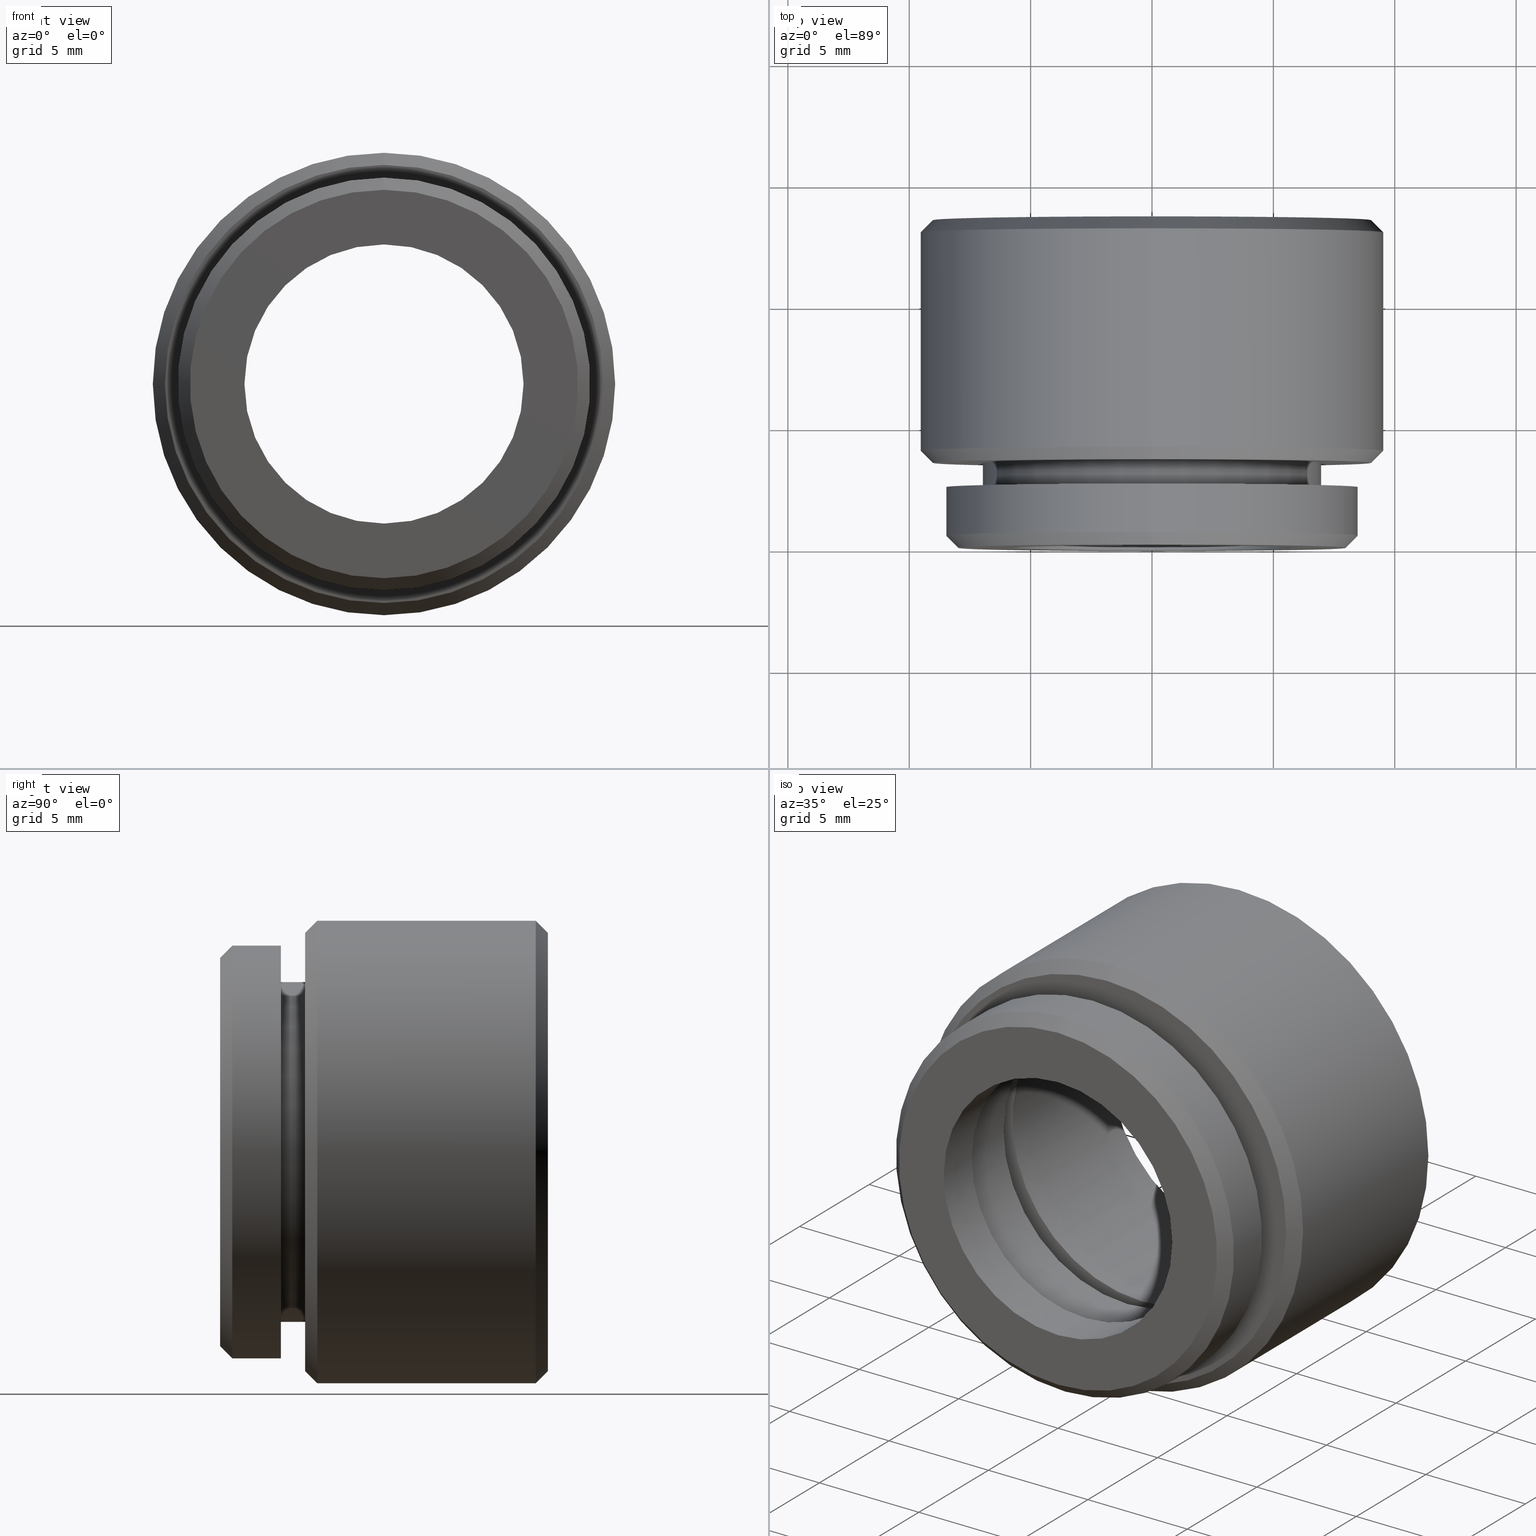
[diagram: canonical four-view strip — front | top / right | iso, engineering-drawing reading convention]
A machine part, canonical four-view strip (front | top / right | iso — engineering-drawing reading convention). The complete STEP part file that produces these views, byte-faithful:
ISO-10303-21;
HEADER;
FILE_DESCRIPTION (( 'STEP AP214' ),
    '1' );
FILE_NAME ('500039.STEP',
    '2019-09-04T02:09:59',
    ( 'user' ),
    ( '΢���й�' ),
    'SwSTEP 2.0',
    'SolidWorks 2016',
    '' );
FILE_SCHEMA (( 'AUTOMOTIVE_DESIGN' ));
ENDSEC;

DATA;
#1 = DIRECTION ( 'NONE',  ( 0.0000000000000000000, 0.0000000000000000000, -1.000000000000000000 ) ) ;
#2 = ORIENTED_EDGE ( 'NONE', *, *, #518, .F. ) ;
#3 = FACE_OUTER_BOUND ( 'NONE', #289, .T. ) ;
#4 = DIRECTION ( 'NONE',  ( 0.0000000000000000000, 0.0000000000000000000, 1.000000000000000000 ) ) ;
#5 = EDGE_LOOP ( 'NONE', ( #522, #6, #822, #771 ) ) ;
#6 = ORIENTED_EDGE ( 'NONE', *, *, #441, .T. ) ;
#7 = DIRECTION ( 'NONE',  ( 0.0000000000000000000, 0.0000000000000000000, 1.000000000000000000 ) ) ;
#8 = EDGE_CURVE ( 'NONE', #218, #389, #751, .T. ) ;
#9 = AXIS2_PLACEMENT_3D ( 'NONE', #808, #347, #866 ) ;
#10 = PRESENTATION_STYLE_ASSIGNMENT (( #372 ) ) ;
#11 = CARTESIAN_POINT ( 'NONE',  ( 0.0000000000000000000, 6.000000000000000000, 0.0000000000000000000 ) ) ;
#12 = CIRCLE ( 'NONE', #136, 6.500000000000000900 ) ;
#13 = APPLICATION_CONTEXT ( 'automotive_design' ) ;
#14 = EDGE_CURVE ( 'NONE', #254, #433, #829, .T. ) ;
#15 = DIRECTION ( 'NONE',  ( -0.0000000000000000000, -1.000000000000000000, -0.0000000000000000000 ) ) ;
#16 = ORIENTED_EDGE ( 'NONE', *, *, #14, .F. ) ;
#17 = STYLED_ITEM ( 'NONE', ( #204 ), #374 ) ;
#18 = VECTOR ( 'NONE', #781, 1000.000000000000000 ) ;
#19 = EDGE_CURVE ( 'NONE', #734, #741, #678, .T. ) ;
#20 = PLANE ( 'NONE',  #493 ) ;
#21 = VERTEX_POINT ( 'NONE', #332 ) ;
#22 = AXIS2_PLACEMENT_3D ( 'NONE', #351, #375, #187 ) ;
#23 = CARTESIAN_POINT ( 'NONE',  ( 8.572527594031472200E-016, 13.49999999999999800, -6.999999999999999100 ) ) ;
#24 = VERTEX_POINT ( 'NONE', #835 ) ;
#25 = CIRCLE ( 'NONE', #345, 6.500000000000000900 ) ;
#26 = CARTESIAN_POINT ( 'NONE',  ( 0.0000000000000000000, 0.0000000000000000000, 0.0000000000000000000 ) ) ;
#27 = VERTEX_POINT ( 'NONE', #661 ) ;
#28 = FACE_OUTER_BOUND ( 'NONE', #297, .T. ) ;
#29 = DIRECTION ( 'NONE',  ( 0.0000000000000000000, 0.7071067811865487900, 0.7071067811865463500 ) ) ;
#30 = ADVANCED_FACE ( 'NONE', ( #696, #657 ), #232, .T. ) ;
#31 = CYLINDRICAL_SURFACE ( 'NONE', #622, 7.600000000000000500 ) ;
#32 = AXIS2_PLACEMENT_3D ( 'NONE', #593, #470, #132 ) ;
#33 = CARTESIAN_POINT ( 'NONE',  ( 0.0000000000000000000, 13.49999999999999800, 0.0000000000000000000 ) ) ;
#34 = CARTESIAN_POINT ( 'NONE',  ( 0.0000000000000000000, 12.99999999999999600, 0.0000000000000000000 ) ) ;
#35 = ORIENTED_EDGE ( 'NONE', *, *, #705, .T. ) ;
#36 = SURFACE_STYLE_FILL_AREA ( #842 ) ;
#37 = ORIENTED_EDGE ( 'NONE', *, *, #8, .T. ) ;
#38 = ORIENTED_EDGE ( 'NONE', *, *, #53, .T. ) ;
#39 = ADVANCED_FACE ( 'NONE', ( #646, #3 ), #625, .T. ) ;
#40 = CARTESIAN_POINT ( 'NONE',  ( 0.0000000000000000000, 2.000000000000000000, -5.750000000000000000 ) ) ;
#41 = DIRECTION ( 'NONE',  ( -0.0000000000000000000, -1.000000000000000000, -0.0000000000000000000 ) ) ;
#42 = VERTEX_POINT ( 'NONE', #196 ) ;
#43 = FACE_BOUND ( 'NONE', #126, .T. ) ;
#44 = EDGE_CURVE ( 'NONE', #405, #21, #730, .T. ) ;
#45 =( LENGTH_UNIT ( ) NAMED_UNIT ( * ) SI_UNIT ( .MILLI., .METRE. ) );
#46 = ORIENTED_EDGE ( 'NONE', *, *, #359, .F. ) ;
#47 = EDGE_LOOP ( 'NONE', ( #49, #219, #317, #758 ) ) ;
#48 = DIRECTION ( 'NONE',  ( 0.0000000000000000000, -0.0000000000000000000, 1.000000000000000000 ) ) ;
#49 = ORIENTED_EDGE ( 'NONE', *, *, #441, .F. ) ;
#50 = DIRECTION ( 'NONE',  ( 0.0000000000000000000, -0.0000000000000000000, 1.000000000000000000 ) ) ;
#51 = DIRECTION ( 'NONE',  ( -0.0000000000000000000, -1.000000000000000000, -0.0000000000000000000 ) ) ;
#52 = SURFACE_STYLE_FILL_AREA ( #693 ) ;
#53 = EDGE_CURVE ( 'NONE', #709, #27, #25, .T. ) ;
#54 = AXIS2_PLACEMENT_3D ( 'NONE', #243, #804, #464 ) ;
#55 = CARTESIAN_POINT ( 'NONE',  ( 0.0000000000000000000, 0.0000000000000000000, -7.000000000000000900 ) ) ;
#56 =( LENGTH_UNIT ( ) NAMED_UNIT ( * ) SI_UNIT ( .MILLI., .METRE. ) );
#57 = CARTESIAN_POINT ( 'NONE',  ( 0.0000000000000000000, 13.49999999999999800, 0.0000000000000000000 ) ) ;
#58 = DIRECTION ( 'NONE',  ( -0.0000000000000000000, -1.000000000000000000, -0.0000000000000000000 ) ) ;
#59 = CARTESIAN_POINT ( 'NONE',  ( 0.0000000000000000000, 3.500000000000000000, -7.000000000000000000 ) ) ;
#60 = FACE_OUTER_BOUND ( 'NONE', #267, .T. ) ;
#61 = FILL_AREA_STYLE_COLOUR ( '', #682 ) ;
#62 = ORIENTED_EDGE ( 'NONE', *, *, #215, .F. ) ;
#63 = DIRECTION ( 'NONE',  ( 0.0000000000000000000, 0.0000000000000000000, -1.000000000000000000 ) ) ;
#64 = EDGE_CURVE ( 'NONE', #848, #671, #819, .T. ) ;
#65 = ORIENTED_EDGE ( 'NONE', *, *, #97, .T. ) ;
#66 = DIRECTION ( 'NONE',  ( -0.0000000000000000000, -1.000000000000000000, -0.0000000000000000000 ) ) ;
#67 = FILL_AREA_STYLE_COLOUR ( '', #89 ) ;
#68 = CARTESIAN_POINT ( 'NONE',  ( 6.500000000000000900, 6.000000000000000000, 0.0000000000000000000 ) ) ;
#69 = FACE_OUTER_BOUND ( 'NONE', #88, .T. ) ;
#70 = PRESENTATION_LAYER_ASSIGNMENT (  '', '', ( #17 ) ) ;
#71 = EDGE_CURVE ( 'NONE', #517, #552, #759, .T. ) ;
#72 = CIRCLE ( 'NONE', #264, 8.500000000000000000 ) ;
#73 = ORIENTED_EDGE ( 'NONE', *, *, #705, .F. ) ;
#74 = AXIS2_PLACEMENT_3D ( 'NONE', #262, #266, #523 ) ;
#75 = DIRECTION ( 'NONE',  ( 0.0000000000000000000, 0.0000000000000000000, -1.000000000000000000 ) ) ;
#76 = PRESENTATION_STYLE_ASSIGNMENT (( #803 ) ) ;
#77 = ORIENTED_EDGE ( 'NONE', *, *, #260, .T. ) ;
#78 = CYLINDRICAL_SURFACE ( 'NONE', #54, 5.750000000000000000 ) ;
#79 =( NAMED_UNIT ( * ) SI_UNIT ( $, .STERADIAN. ) SOLID_ANGLE_UNIT ( ) );
#80 = ORIENTED_EDGE ( 'NONE', *, *, #145, .F. ) ;
#81 = AXIS2_PLACEMENT_3D ( 'NONE', #706, #41, #195 ) ;
#82 = AXIS2_PLACEMENT_3D ( 'NONE', #663, #157, #607 ) ;
#83 = ORIENTED_EDGE ( 'NONE', *, *, #479, .F. ) ;
#84 = VECTOR ( 'NONE', #225, 1000.000000000000000 ) ;
#85 = DIRECTION ( 'NONE',  ( 0.0000000000000000000, 0.0000000000000000000, 1.000000000000000000 ) ) ;
#86 = EDGE_CURVE ( 'NONE', #131, #276, #689, .T. ) ;
#87 = CONICAL_SURFACE ( 'NONE', #166, 6.999999999999999100, 0.7853981633974447300 ) ;
#88 = EDGE_LOOP ( 'NONE', ( #784, #740, #190, #472 ) ) ;
#89 = COLOUR_RGB ( '',1.000000000000000000, 1.000000000000000000, 1.000000000000000000 ) ;
#90 = DIRECTION ( 'NONE',  ( 0.0000000000000000000, 0.0000000000000000000, -1.000000000000000000 ) ) ;
#91 = DIRECTION ( 'NONE',  ( 0.0000000000000000000, 0.0000000000000000000, 1.000000000000000000 ) ) ;
#92 = VERTEX_POINT ( 'NONE', #830 ) ;
#93 = DIRECTION ( 'NONE',  ( 0.0000000000000000000, 0.0000000000000000000, -1.000000000000000000 ) ) ;
#94 = CARTESIAN_POINT ( 'NONE',  ( 0.0000000000000000000, 2.499999999999999600, 0.0000000000000000000 ) ) ;
#95 = CONICAL_SURFACE ( 'NONE', #700, 9.025000000000002100, 0.7853981633974452800 ) ;
#96 = DIRECTION ( 'NONE',  ( 0.0000000000000000000, 0.0000000000000000000, -1.000000000000000000 ) ) ;
#97 = EDGE_CURVE ( 'NONE', #389, #686, #836, .T. ) ;
#98 = AXIS2_PLACEMENT_3D ( 'NONE', #582, #220, #591 ) ;
#99 = CYLINDRICAL_SURFACE ( 'NONE', #807, 7.000000000000000900 ) ;
#100 = ORIENTED_EDGE ( 'NONE', *, *, #113, .F. ) ;
#101 = ADVANCED_FACE ( 'NONE', ( #849 ), #261, .T. ) ;
#102 =( NAMED_UNIT ( * ) PLANE_ANGLE_UNIT ( ) SI_UNIT ( $, .RADIAN. ) );
#103 = ORIENTED_EDGE ( 'NONE', *, *, #316, .T. ) ;
#104 = DIRECTION ( 'NONE',  ( -0.0000000000000000000, -1.000000000000000000, -0.0000000000000000000 ) ) ;
#105 = DIRECTION ( 'NONE',  ( 0.0000000000000000000, -0.7071067811865439100, -0.7071067811865512400 ) ) ;
#106 = CARTESIAN_POINT ( 'NONE',  ( 0.0000000000000000000, 4.000000000000001800, 0.0000000000000000000 ) ) ;
#107 = ADVANCED_FACE ( 'NONE', ( #630 ), #746, .T. ) ;
#108 = VECTOR ( 'NONE', #149, 1000.000000000000000 ) ;
#109 = CARTESIAN_POINT ( 'NONE',  ( 0.0000000000000000000, 12.99999999999999600, 0.0000000000000000000 ) ) ;
#110 = MECHANICAL_DESIGN_GEOMETRIC_PRESENTATION_REPRESENTATION (  '', ( #17 ), #160 ) ;
#111 = EDGE_LOOP ( 'NONE', ( #371, #103 ) ) ;
#112 = VERTEX_POINT ( 'NONE', #627 ) ;
#113 = EDGE_CURVE ( 'NONE', #171, #490, #755, .T. ) ;
#114 = ADVANCED_FACE ( 'NONE', ( #584, #782 ), #20, .T. ) ;
#115 = ORIENTED_EDGE ( 'NONE', *, *, #14, .T. ) ;
#116 = CARTESIAN_POINT ( 'NONE',  ( 0.0000000000000000000, 13.49999999999999800, 6.999999999999999100 ) ) ;
#117 = FACE_OUTER_BOUND ( 'NONE', #146, .T. ) ;
#118 = AXIS2_PLACEMENT_3D ( 'NONE', #654, #51, #787 ) ;
#119 = DIRECTION ( 'NONE',  ( -0.0000000000000000000, -1.000000000000000000, -0.0000000000000000000 ) ) ;
#120 = APPLICATION_PROTOCOL_DEFINITION ( 'draft international standard', 'automotive_design', 1998, #13 ) ;
#121 = LINE ( 'NONE', #385, #817 ) ;
#122 = CARTESIAN_POINT ( 'NONE',  ( 0.0000000000000000000, 0.5000000000000022200, 0.0000000000000000000 ) ) ;
#123 = STYLED_ITEM ( 'NONE', ( #344 ), #205 ) ;
#124 = DIRECTION ( 'NONE',  ( -0.0000000000000000000, -1.000000000000000000, -0.0000000000000000000 ) ) ;
#125 = FACE_OUTER_BOUND ( 'NONE', #856, .T. ) ;
#126 = EDGE_LOOP ( 'NONE', ( #575, #547 ) ) ;
#127 = DIRECTION ( 'NONE',  ( 0.0000000000000000000, 0.0000000000000000000, 1.000000000000000000 ) ) ;
#128 = PLANE ( 'NONE',  #137 ) ;
#129 = FILL_AREA_STYLE_COLOUR ( '', #273 ) ;
#130 = ORIENTED_EDGE ( 'NONE', *, *, #871, .T. ) ;
#131 = VERTEX_POINT ( 'NONE', #255 ) ;
#132 = DIRECTION ( 'NONE',  ( 0.0000000000000000000, 0.0000000000000000000, 1.000000000000000000 ) ) ;
#133 = DIRECTION ( 'NONE',  ( -0.0000000000000000000, 1.000000000000000000, -0.0000000000000000000 ) ) ;
#134 = EDGE_LOOP ( 'NONE', ( #381, #824 ) ) ;
#135 = CARTESIAN_POINT ( 'NONE',  ( 0.0000000000000000000, 0.0000000000000000000, -6.250000000000000000 ) ) ;
#136 = AXIS2_PLACEMENT_3D ( 'NONE', #845, #816, #4 ) ;
#137 = AXIS2_PLACEMENT_3D ( 'NONE', #68, #277, #290 ) ;
#138 = COLOUR_RGB ( '',1.000000000000000000, 1.000000000000000000, 1.000000000000000000 ) ;
#139 = CARTESIAN_POINT ( 'NONE',  ( 0.0000000000000000000, 2.500000000000000000, 0.0000000000000000000 ) ) ;
#140 =( LENGTH_UNIT ( ) NAMED_UNIT ( * ) SI_UNIT ( .MILLI., .METRE. ) );
#141 = SURFACE_STYLE_FILL_AREA ( #775 ) ;
#142 = ORIENTED_EDGE ( 'NONE', *, *, #564, .T. ) ;
#143 = VERTEX_POINT ( 'NONE', #760 ) ;
#144 = CARTESIAN_POINT ( 'NONE',  ( 1.166476076187854000E-015, 12.99999999999999600, 9.525000000000000400 ) ) ;
#145 = EDGE_CURVE ( 'NONE', #561, #490, #738, .T. ) ;
#146 = EDGE_LOOP ( 'NONE', ( #681, #555 ) ) ;
#147 = CYLINDRICAL_SURFACE ( 'NONE', #537, 8.500000000000000000 ) ;
#148 = ORIENTED_EDGE ( 'NONE', *, *, #699, .F. ) ;
#149 = DIRECTION ( 'NONE',  ( -0.0000000000000000000, -1.000000000000000000, -0.0000000000000000000 ) ) ;
#150 = ORIENTED_EDGE ( 'NONE', *, *, #713, .F. ) ;
#151 = AXIS2_PLACEMENT_3D ( 'NONE', #469, #58, #235 ) ;
#152 = AXIS2_PLACEMENT_3D ( 'NONE', #400, #343, #448 ) ;
#153 = SURFACE_STYLE_FILL_AREA ( #265 ) ;
#154 = DIRECTION ( 'NONE',  ( -0.0000000000000000000, -1.000000000000000000, -0.0000000000000000000 ) ) ;
#155 = CARTESIAN_POINT ( 'NONE',  ( 0.0000000000000000000, 0.0000000000000000000, 0.0000000000000000000 ) ) ;
#156 = CIRCLE ( 'NONE', #22, 6.250000000000000000 ) ;
#157 = DIRECTION ( 'NONE',  ( -0.0000000000000000000, -1.000000000000000000, -0.0000000000000000000 ) ) ;
#158 = VERTEX_POINT ( 'NONE', #309 ) ;
#159 = EDGE_LOOP ( 'NONE', ( #355, #508 ) ) ;
#160 =( GEOMETRIC_REPRESENTATION_CONTEXT ( 3 ) GLOBAL_UNCERTAINTY_ASSIGNED_CONTEXT ( ( #756 ) ) GLOBAL_UNIT_ASSIGNED_CONTEXT ( ( #56, #793, #596 ) ) REPRESENTATION_CONTEXT ( 'NONE', 'WORKASPACE' ) );
#161 = DIRECTION ( 'NONE',  ( 8.659560562354918100E-017, 0.7071067811865487900, -0.7071067811865463500 ) ) ;
#162 = FACE_OUTER_BOUND ( 'NONE', #840, .T. ) ;
#163 = EDGE_CURVE ( 'NONE', #281, #517, #620, .T. ) ;
#164 = DIRECTION ( 'NONE',  ( -0.0000000000000000000, -1.000000000000000000, -0.0000000000000000000 ) ) ;
#165 = SURFACE_SIDE_STYLE ('',( #52 ) ) ;
#166 = AXIS2_PLACEMENT_3D ( 'NONE', #395, #631, #127 ) ;
#167 = CARTESIAN_POINT ( 'NONE',  ( 0.0000000000000000000, 0.0000000000000000000, 0.0000000000000000000 ) ) ;
#168 = CARTESIAN_POINT ( 'NONE',  ( 0.0000000000000000000, 6.000000000000000000, 0.0000000000000000000 ) ) ;
#169 = PRESENTATION_STYLE_ASSIGNMENT (( #450 ) ) ;
#170 = PRESENTATION_LAYER_ASSIGNMENT (  '', '', ( #123 ) ) ;
#171 = VERTEX_POINT ( 'NONE', #662 ) ;
#172 = ADVANCED_FACE ( 'NONE', ( #726 ), #31, .F. ) ;
#173 = LINE ( 'NONE', #668, #360 ) ;
#174 = AXIS2_PLACEMENT_3D ( 'NONE', #106, #201, #837 ) ;
#175 = ADVANCED_FACE ( 'NONE', ( #543 ), #403, .T. ) ;
#176 = DIRECTION ( 'NONE',  ( -0.0000000000000000000, -1.000000000000000000, -0.0000000000000000000 ) ) ;
#177 = AXIS2_PLACEMENT_3D ( 'NONE', #94, #532, #283 ) ;
#178 = DIRECTION ( 'NONE',  ( 8.659560562354979700E-017, -0.7071067811865439100, 0.7071067811865512400 ) ) ;
#179 = VERTEX_POINT ( 'NONE', #815 ) ;
#180 = LINE ( 'NONE', #202, #362 ) ;
#181 = DIRECTION ( 'NONE',  ( 0.0000000000000000000, 0.0000000000000000000, -1.000000000000000000 ) ) ;
#182 = EDGE_CURVE ( 'NONE', #158, #848, #489, .T. ) ;
#183 = CARTESIAN_POINT ( 'NONE',  ( 0.0000000000000000000, 4.000000000000001800, 0.0000000000000000000 ) ) ;
#184 = CARTESIAN_POINT ( 'NONE',  ( 0.0000000000000000000, 2.000000000000000000, 0.0000000000000000000 ) ) ;
#185 = ADVANCED_FACE ( 'NONE', ( #603 ), #438, .T. ) ;
#186 = EDGE_LOOP ( 'NONE', ( #353, #356, #422, #750 ) ) ;
#187 = DIRECTION ( 'NONE',  ( 0.0000000000000000000, 0.0000000000000000000, -1.000000000000000000 ) ) ;
#188 = DIRECTION ( 'NONE',  ( -0.0000000000000000000, -1.000000000000000000, -0.0000000000000000000 ) ) ;
#189 = VERTEX_POINT ( 'NONE', #40 ) ;
#190 = ORIENTED_EDGE ( 'NONE', *, *, #430, .T. ) ;
#191 = CARTESIAN_POINT ( 'NONE',  ( 0.0000000000000000000, 0.0000000000000000000, 0.0000000000000000000 ) ) ;
#192 = SURFACE_SIDE_STYLE ('',( #418 ) ) ;
#193 = DIRECTION ( 'NONE',  ( 0.0000000000000000000, 1.000000000000000000, 0.0000000000000000000 ) ) ;
#194 = CARTESIAN_POINT ( 'NONE',  ( 1.166476076187854000E-015, 12.99999999999999600, 9.525000000000000400 ) ) ;
#195 = DIRECTION ( 'NONE',  ( 0.0000000000000000000, 0.0000000000000000000, -1.000000000000000000 ) ) ;
#196 = CARTESIAN_POINT ( 'NONE',  ( 9.307315673519885500E-016, 5.000000000000000900, 7.600000000000000500 ) ) ;
#197 = AXIS2_PLACEMENT_3D ( 'NONE', #717, #487, #692 ) ;
#198 = AXIS2_PLACEMENT_3D ( 'NONE', #271, #862, #676 ) ;
#199 = EDGE_LOOP ( 'NONE', ( #599, #802, #672, #623 ) ) ;
#200 = CIRCLE ( 'NONE', #447, 5.750000000000000000 ) ;
#201 = DIRECTION ( 'NONE',  ( 0.0000000000000000000, 1.000000000000000000, 0.0000000000000000000 ) ) ;
#202 = CARTESIAN_POINT ( 'NONE',  ( 0.0000000000000000000, 12.99999999999999600, -9.525000000000000400 ) ) ;
#203 = DIRECTION ( 'NONE',  ( 0.0000000000000000000, 0.0000000000000000000, -1.000000000000000000 ) ) ;
#204 = PRESENTATION_STYLE_ASSIGNMENT (( #714 ) ) ;
#205 = ADVANCED_BREP_SHAPE_REPRESENTATION ( '500039', ( #394, #398 ), #249 ) ;
#206 = AXIS2_PLACEMENT_3D ( 'NONE', #587, #653, #498 ) ;
#207 = CARTESIAN_POINT ( 'NONE',  ( 8.500000000000000000, 2.499999999999999600, 0.0000000000000000000 ) ) ;
#208 = ORIENTED_EDGE ( 'NONE', *, *, #735, .T. ) ;
#209 = EDGE_LOOP ( 'NONE', ( #16, #632, #634, #597 ) ) ;
#210 = DIRECTION ( 'NONE',  ( 0.0000000000000000000, 0.0000000000000000000, -1.000000000000000000 ) ) ;
#211 = STYLED_ITEM ( 'NONE', ( #76 ), #383 ) ;
#212 = CARTESIAN_POINT ( 'NONE',  ( 0.0000000000000000000, 0.0000000000000000000, -5.750000000000000000 ) ) ;
#213 = LINE ( 'NONE', #55, #790 ) ;
#214 = UNCERTAINTY_MEASURE_WITH_UNIT (LENGTH_MEASURE( 1.000000000000000100E-005 ), #45, 'distance_accuracy_value', 'NONE');
#215 = EDGE_CURVE ( 'NONE', #741, #734, #451, .T. ) ;
#216 = ORIENTED_EDGE ( 'NONE', *, *, #791, .T. ) ;
#217 = AXIS2_PLACEMENT_3D ( 'NONE', #516, #526, #666 ) ;
#218 = VERTEX_POINT ( 'NONE', #59 ) ;
#219 = ORIENTED_EDGE ( 'NONE', *, *, #673, .T. ) ;
#220 = DIRECTION ( 'NONE',  ( -0.0000000000000000000, -1.000000000000000000, -0.0000000000000000000 ) ) ;
#221 = EDGE_LOOP ( 'NONE', ( #729, #768, #680, #546 ) ) ;
#222 = MECHANICAL_DESIGN_GEOMETRIC_PRESENTATION_REPRESENTATION (  '', ( #123 ), #270 ) ;
#223 =( NAMED_UNIT ( * ) SI_UNIT ( $, .STERADIAN. ) SOLID_ANGLE_UNIT ( ) );
#224 = CIRCLE ( 'NONE', #228, 5.750000000000000000 ) ;
#225 = DIRECTION ( 'NONE',  ( -0.0000000000000000000, -1.000000000000000000, -0.0000000000000000000 ) ) ;
#226 = FACE_OUTER_BOUND ( 'NONE', #307, .T. ) ;
#227 = ORIENTED_EDGE ( 'NONE', *, *, #308, .F. ) ;
#228 = AXIS2_PLACEMENT_3D ( 'NONE', #436, #563, #341 ) ;
#229 = AXIS2_PLACEMENT_3D ( 'NONE', #167, #475, #91 ) ;
#230 = ORIENTED_EDGE ( 'NONE', *, *, #735, .F. ) ;
#231 = ORIENTED_EDGE ( 'NONE', *, *, #699, .T. ) ;
#232 = PLANE ( 'NONE',  #206 ) ;
#233 = ORIENTED_EDGE ( 'NONE', *, *, #287, .T. ) ;
#234 = LINE ( 'NONE', #329, #776 ) ;
#235 = DIRECTION ( 'NONE',  ( 0.0000000000000000000, 0.0000000000000000000, -1.000000000000000000 ) ) ;
#236 = DIRECTION ( 'NONE',  ( 0.0000000000000000000, 0.0000000000000000000, -1.000000000000000000 ) ) ;
#237 = CARTESIAN_POINT ( 'NONE',  ( 7.041719095097280900E-016, 0.0000000000000000000, 5.750000000000000000 ) ) ;
#238 = EDGE_CURVE ( 'NONE', #112, #42, #629, .T. ) ;
#239 = FACE_OUTER_BOUND ( 'NONE', #621, .T. ) ;
#240 = EDGE_LOOP ( 'NONE', ( #867, #419, #533, #414 ) ) ;
#241 = CARTESIAN_POINT ( 'NONE',  ( 0.0000000000000000000, 13.49999999999999800, 0.0000000000000000000 ) ) ;
#242 = ORIENTED_EDGE ( 'NONE', *, *, #572, .F. ) ;
#243 = CARTESIAN_POINT ( 'NONE',  ( 0.0000000000000000000, 0.0000000000000000000, 0.0000000000000000000 ) ) ;
#244 = ORIENTED_EDGE ( 'NONE', *, *, #673, .F. ) ;
#245 = VECTOR ( 'NONE', #298, 1000.000000000000000 ) ;
#246 = ADVANCED_FACE ( 'NONE', ( #471, #226 ), #677, .T. ) ;
#247 = CARTESIAN_POINT ( 'NONE',  ( 9.525000000000000400, 13.49999999999999800, 0.0000000000000000000 ) ) ;
#248 = CARTESIAN_POINT ( 'NONE',  ( 0.0000000000000000000, 0.0000000000000000000, 0.0000000000000000000 ) ) ;
#249 =( GEOMETRIC_REPRESENTATION_CONTEXT ( 3 ) GLOBAL_UNCERTAINTY_ASSIGNED_CONTEXT ( ( #275 ) ) GLOBAL_UNIT_ASSIGNED_CONTEXT ( ( #568, #442, #79 ) ) REPRESENTATION_CONTEXT ( 'NONE', 'WORKASPACE' ) );
#250 = FACE_OUTER_BOUND ( 'NONE', #199, .T. ) ;
#251 = FILL_AREA_STYLE_COLOUR ( '', #566 ) ;
#252 = DIRECTION ( 'NONE',  ( -0.0000000000000000000, -1.000000000000000000, -0.0000000000000000000 ) ) ;
#253 = PRODUCT ( '500039', '500039', '', ( #504 ) ) ;
#254 = VERTEX_POINT ( 'NONE', #328 ) ;
#255 = CARTESIAN_POINT ( 'NONE',  ( 7.654042494670956600E-016, 5.000000000000000000, 6.249999999999999100 ) ) ;
#256 = AXIS2_PLACEMENT_3D ( 'NONE', #168, #119, #96 ) ;
#257 = CIRCLE ( 'NONE', #512, 7.000000000000000900 ) ;
#258 = CARTESIAN_POINT ( 'NONE',  ( 0.0000000000000000000, 3.500000000000000000, 0.0000000000000000000 ) ) ;
#259 = DIRECTION ( 'NONE',  ( 0.0000000000000000000, 1.000000000000000000, 0.0000000000000000000 ) ) ;
#260 = EDGE_CURVE ( 'NONE', #552, #517, #687, .T. ) ;
#261 = CONICAL_SURFACE ( 'NONE', #468, 9.525000000000000400, 0.7853981633974533900 ) ;
#262 = CARTESIAN_POINT ( 'NONE',  ( 0.0000000000000000000, 0.0000000000000000000, 0.0000000000000000000 ) ) ;
#263 = SURFACE_SIDE_STYLE ('',( #153 ) ) ;
#264 = AXIS2_PLACEMENT_3D ( 'NONE', #122, #592, #458 ) ;
#265 = FILL_AREA_STYLE ('',( #716 ) ) ;
#266 = DIRECTION ( 'NONE',  ( -0.0000000000000000000, -1.000000000000000000, -0.0000000000000000000 ) ) ;
#267 = EDGE_LOOP ( 'NONE', ( #37, #65, #616, #242 ) ) ;
#268 = CIRCLE ( 'NONE', #792, 9.525000000000000400 ) ;
#269 = FILL_AREA_STYLE_COLOUR ( '', #685 ) ;
#270 =( GEOMETRIC_REPRESENTATION_CONTEXT ( 3 ) GLOBAL_UNCERTAINTY_ASSIGNED_CONTEXT ( ( #570 ) ) GLOBAL_UNIT_ASSIGNED_CONTEXT ( ( #140, #600, #466 ) ) REPRESENTATION_CONTEXT ( 'NONE', 'WORKASPACE' ) );
#271 = CARTESIAN_POINT ( 'NONE',  ( 0.0000000000000000000, 2.499999999999999600, 0.0000000000000000000 ) ) ;
#272 = CARTESIAN_POINT ( 'NONE',  ( 0.0000000000000000000, 6.000000000000000000, -7.600000000000000500 ) ) ;
#273 = COLOUR_RGB ( '',1.000000000000000000, 1.000000000000000000, 1.000000000000000000 ) ;
#274 = DIRECTION ( 'NONE',  ( -0.0000000000000000000, -1.000000000000000000, -0.0000000000000000000 ) ) ;
#275 = UNCERTAINTY_MEASURE_WITH_UNIT (LENGTH_MEASURE( 1.000000000000000100E-005 ), #568, 'distance_accuracy_value', 'NONE');
#276 = VERTEX_POINT ( 'NONE', #624 ) ;
#277 = DIRECTION ( 'NONE',  ( 0.0000000000000000000, -1.000000000000000000, -0.0000000000000000000 ) ) ;
#278 = CARTESIAN_POINT ( 'NONE',  ( 0.0000000000000000000, 0.0000000000000000000, 0.0000000000000000000 ) ) ;
#279 = SURFACE_STYLE_USAGE ( .BOTH. , #459 ) ;
#280 = STYLED_ITEM ( 'NONE', ( #639 ), #843 ) ;
#281 = VERTEX_POINT ( 'NONE', #314 ) ;
#282 = AXIS2_PLACEMENT_3D ( 'NONE', #720, #545, #285 ) ;
#283 = DIRECTION ( 'NONE',  ( 0.0000000000000000000, 0.0000000000000000000, -1.000000000000000000 ) ) ;
#284 = CIRCLE ( 'NONE', #656, 7.600000000000000500 ) ;
#285 = DIRECTION ( 'NONE',  ( 0.0000000000000000000, 0.0000000000000000000, -1.000000000000000000 ) ) ;
#286 = CIRCLE ( 'NONE', #217, 8.000000000000000000 ) ;
#287 = EDGE_CURVE ( 'NONE', #276, #446, #156, .T. ) ;
#288 = ORIENTED_EDGE ( 'NONE', *, *, #238, .T. ) ;
#289 = EDGE_LOOP ( 'NONE', ( #559, #2 ) ) ;
#290 = DIRECTION ( 'NONE',  ( 0.0000000000000000000, 0.0000000000000000000, -1.000000000000000000 ) ) ;
#291 = VERTEX_POINT ( 'NONE', #194 ) ;
#292 = VECTOR ( 'NONE', #306, 1000.000000000000000 ) ;
#293 = CARTESIAN_POINT ( 'NONE',  ( 0.0000000000000000000, 13.49999999999999800, -9.024999999999993200 ) ) ;
#294 = CIRCLE ( 'NONE', #744, 9.525000000000000400 ) ;
#295 = CARTESIAN_POINT ( 'NONE',  ( 0.0000000000000000000, 0.0000000000000000000, -5.750000000000000000 ) ) ;
#296 = FACE_OUTER_BOUND ( 'NONE', #811, .T. ) ;
#297 = EDGE_LOOP ( 'NONE', ( #358, #409, #233, #83 ) ) ;
#298 = DIRECTION ( 'NONE',  ( -0.0000000000000000000, -1.000000000000000000, -0.0000000000000000000 ) ) ;
#299 = ORIENTED_EDGE ( 'NONE', *, *, #86, .F. ) ;
#300 = DIRECTION ( 'NONE',  ( -0.0000000000000000000, -1.000000000000000000, -0.0000000000000000000 ) ) ;
#301 = AXIS2_PLACEMENT_3D ( 'NONE', #207, #567, #50 ) ;
#302 = FACE_OUTER_BOUND ( 'NONE', #483, .T. ) ;
#303 = DIRECTION ( 'NONE',  ( 0.0000000000000000000, 1.000000000000000000, 0.0000000000000000000 ) ) ;
#304 = AXIS2_PLACEMENT_3D ( 'NONE', #860, #589, #858 ) ;
#305 =( LENGTH_UNIT ( ) NAMED_UNIT ( * ) SI_UNIT ( .MILLI., .METRE. ) );
#306 = DIRECTION ( 'NONE',  ( -0.0000000000000000000, -1.000000000000000000, -0.0000000000000000000 ) ) ;
#307 = EDGE_LOOP ( 'NONE', ( #521, #404 ) ) ;
#308 = EDGE_CURVE ( 'NONE', #490, #561, #391, .T. ) ;
#309 = CARTESIAN_POINT ( 'NONE',  ( 0.0000000000000000000, 3.500000000000000000, 9.025000000000002100 ) ) ;
#310 = UNCERTAINTY_MEASURE_WITH_UNIT (LENGTH_MEASURE( 1.000000000000000100E-005 ), #571, 'distance_accuracy_value', 'NONE');
#311 = CYLINDRICAL_SURFACE ( 'NONE', #82, 5.750000000000000000 ) ;
#312 = SURFACE_STYLE_FILL_AREA ( #462 ) ;
#313 = LINE ( 'NONE', #425, #455 ) ;
#314 = CARTESIAN_POINT ( 'NONE',  ( 0.0000000000000000000, 12.99999999999999600, -6.500000000000000900 ) ) ;
#315 = CARTESIAN_POINT ( 'NONE',  ( 6.250000000000000000, 2.000000000000000000, 0.0000000000000000000 ) ) ;
#316 = EDGE_CURVE ( 'NONE', #473, #158, #428, .T. ) ;
#317 = ORIENTED_EDGE ( 'NONE', *, *, #614, .T. ) ;
#318 = ADVANCED_FACE ( 'NONE', ( #250 ), #87, .F. ) ;
#319 = CARTESIAN_POINT ( 'NONE',  ( 7.960204194457796500E-016, 0.0000000000000000000, 6.500000000000000900 ) ) ;
#320 = FACE_OUTER_BOUND ( 'NONE', #209, .T. ) ;
#321 = PRESENTATION_LAYER_ASSIGNMENT (  '', '', ( #280 ) ) ;
#322 = CARTESIAN_POINT ( 'NONE',  ( 0.0000000000000000000, 0.0000000000000000000, 0.0000000000000000000 ) ) ;
#323 = ADVANCED_FACE ( 'NONE', ( #413 ), #550, .F. ) ;
#324 = ORIENTED_EDGE ( 'NONE', *, *, #828, .F. ) ;
#325 = ADVANCED_FACE ( 'NONE', ( #60 ), #99, .T. ) ;
#326 = ORIENTED_EDGE ( 'NONE', *, *, #748, .T. ) ;
#327 = EDGE_CURVE ( 'NONE', #773, #143, #286, .T. ) ;
#328 = CARTESIAN_POINT ( 'NONE',  ( 1.040949779275250100E-015, 2.499999999999999600, 8.500000000000000000 ) ) ;
#329 = CARTESIAN_POINT ( 'NONE',  ( 1.105243736230486600E-015, 3.500000000000000000, -9.025000000000002100 ) ) ;
#330 = CIRCLE ( 'NONE', #825, 6.249999999999999100 ) ;
#331 = CIRCLE ( 'NONE', #488, 9.025000000000002100 ) ;
#332 = CARTESIAN_POINT ( 'NONE',  ( 9.307315673519885500E-016, 6.000000000000000000, 7.600000000000000500 ) ) ;
#333 = SURFACE_SIDE_STYLE ('',( #312 ) ) ;
#334 = DIRECTION ( 'NONE',  ( 0.0000000000000000000, 0.0000000000000000000, -1.000000000000000000 ) ) ;
#335 = CARTESIAN_POINT ( 'NONE',  ( 5.750000000000000000, 0.0000000000000000000, 0.0000000000000000000 ) ) ;
#336 = ORIENTED_EDGE ( 'NONE', *, *, #564, .F. ) ;
#337 = DIRECTION ( 'NONE',  ( -0.0000000000000000000, -1.000000000000000000, -0.0000000000000000000 ) ) ;
#338 = DIRECTION ( 'NONE',  ( 0.0000000000000000000, 0.0000000000000000000, -1.000000000000000000 ) ) ;
#339 = CARTESIAN_POINT ( 'NONE',  ( 0.0000000000000000000, 2.000000000000000000, -6.250000000000000000 ) ) ;
#340 = DIRECTION ( 'NONE',  ( 0.0000000000000000000, 0.0000000000000000000, 1.000000000000000000 ) ) ;
#341 = DIRECTION ( 'NONE',  ( 0.0000000000000000000, 0.0000000000000000000, -1.000000000000000000 ) ) ;
#342 = PLANE ( 'NONE',  #348 ) ;
#343 = DIRECTION ( 'NONE',  ( -0.0000000000000000000, -1.000000000000000000, -0.0000000000000000000 ) ) ;
#344 = PRESENTATION_STYLE_ASSIGNMENT (( #279 ) ) ;
#345 = AXIS2_PLACEMENT_3D ( 'NONE', #762, #562, #334 ) ;
#346 = ORIENTED_EDGE ( 'NONE', *, *, #647, .T. ) ;
#347 = DIRECTION ( 'NONE',  ( -0.0000000000000000000, -1.000000000000000000, -0.0000000000000000000 ) ) ;
#348 = AXIS2_PLACEMENT_3D ( 'NONE', #335, #478, #1 ) ;
#349 = EDGE_CURVE ( 'NONE', #741, #179, #180, .T. ) ;
#350 = SHAPE_DEFINITION_REPRESENTATION ( #476, #205 ) ;
#351 = CARTESIAN_POINT ( 'NONE',  ( 0.0000000000000000000, 2.000000000000000000, 0.0000000000000000000 ) ) ;
#352 = CARTESIAN_POINT ( 'NONE',  ( 0.0000000000000000000, 0.0000000000000000000, -6.500000000000000900 ) ) ;
#353 = ORIENTED_EDGE ( 'NONE', *, *, #486, .F. ) ;
#354 = DIRECTION ( 'NONE',  ( -0.0000000000000000000, -1.000000000000000000, -0.0000000000000000000 ) ) ;
#355 = ORIENTED_EDGE ( 'NONE', *, *, #412, .T. ) ;
#356 = ORIENTED_EDGE ( 'NONE', *, *, #844, .F. ) ;
#357 = CARTESIAN_POINT ( 'NONE',  ( 0.0000000000000000000, 5.000000000000000000, 0.0000000000000000000 ) ) ;
#358 = ORIENTED_EDGE ( 'NONE', *, *, #779, .F. ) ;
#359 = EDGE_CURVE ( 'NONE', #24, #433, #72, .T. ) ;
#360 = VECTOR ( 'NONE', #252, 1000.000000000000000 ) ;
#361 = VERTEX_POINT ( 'NONE', #431 ) ;
#362 = VECTOR ( 'NONE', #105, 1000.000000000000000 ) ;
#363 = MECHANICAL_DESIGN_GEOMETRIC_PRESENTATION_REPRESENTATION (  '', ( #280 ), #407 ) ;
#364 = DIRECTION ( 'NONE',  ( 0.0000000000000000000, 0.0000000000000000000, -1.000000000000000000 ) ) ;
#365 = LINE ( 'NONE', #116, #712 ) ;
#366 = DIRECTION ( 'NONE',  ( -0.0000000000000000000, -1.000000000000000000, -0.0000000000000000000 ) ) ;
#367 = EDGE_CURVE ( 'NONE', #143, #773, #457, .T. ) ;
#368 = EDGE_LOOP ( 'NONE', ( #821, #732, #873, #851 ) ) ;
#369 = DIRECTION ( 'NONE',  ( -0.0000000000000000000, -1.000000000000000000, -0.0000000000000000000 ) ) ;
#370 = EDGE_LOOP ( 'NONE', ( #731, #739 ) ) ;
#371 = ORIENTED_EDGE ( 'NONE', *, *, #844, .T. ) ;
#372 = SURFACE_STYLE_USAGE ( .BOTH. , #165 ) ;
#373 = VECTOR ( 'NONE', #870, 1000.000000000000000 ) ;
#374 = ADVANCED_FACE ( 'NONE', ( #296 ), #874, .F. ) ;
#375 = DIRECTION ( 'NONE',  ( -0.0000000000000000000, -1.000000000000000000, -0.0000000000000000000 ) ) ;
#376 = FACE_BOUND ( 'NONE', #460, .T. ) ;
#377 = VERTEX_POINT ( 'NONE', #560 ) ;
#378 = ADVANCED_FACE ( 'NONE', ( #239, #376 ), #342, .T. ) ;
#379 = DIRECTION ( 'NONE',  ( -0.0000000000000000000, -1.000000000000000000, -0.0000000000000000000 ) ) ;
#380 = AXIS2_PLACEMENT_3D ( 'NONE', #183, #440, #338 ) ;
#381 = ORIENTED_EDGE ( 'NONE', *, *, #215, .T. ) ;
#382 = DIRECTION ( 'NONE',  ( -0.0000000000000000000, -1.000000000000000000, -0.0000000000000000000 ) ) ;
#383 = ADVANCED_FACE ( 'NONE', ( #125 ), #527, .F. ) ;
#384 = DIRECTION ( 'NONE',  ( -0.0000000000000000000, -1.000000000000000000, -0.0000000000000000000 ) ) ;
#385 = CARTESIAN_POINT ( 'NONE',  ( 0.0000000000000000000, 0.0000000000000000000, 8.000000000000000000 ) ) ;
#386 = LINE ( 'NONE', #135, #18 ) ;
#387 = PRESENTATION_LAYER_ASSIGNMENT (  '', '', ( #211 ) ) ;
#388 = CIRCLE ( 'NONE', #577, 8.500000000000000000 ) ;
#389 = VERTEX_POINT ( 'NONE', #463 ) ;
#390 = EDGE_CURVE ( 'NONE', #92, #281, #777, .T. ) ;
#391 = CIRCLE ( 'NONE', #74, 5.750000000000000000 ) ;
#392 = DIRECTION ( 'NONE',  ( 0.0000000000000000000, 0.0000000000000000000, -1.000000000000000000 ) ) ;
#393 = ORIENTED_EDGE ( 'NONE', *, *, #655, .T. ) ;
#394 = MANIFOLD_SOLID_BREP ( '����1', #645 ) ;
#395 = CARTESIAN_POINT ( 'NONE',  ( 0.0000000000000000000, 13.49999999999999800, 0.0000000000000000000 ) ) ;
#396 = DIRECTION ( 'NONE',  ( 0.0000000000000000000, 0.0000000000000000000, -1.000000000000000000 ) ) ;
#397 = DIRECTION ( 'NONE',  ( 0.0000000000000000000, 1.000000000000000000, 0.0000000000000000000 ) ) ;
#398 = AXIS2_PLACEMENT_3D ( 'NONE', #26, #85, #605 ) ;
#399 = CIRCLE ( 'NONE', #839, 7.600000000000000500 ) ;
#400 = CARTESIAN_POINT ( 'NONE',  ( 0.0000000000000000000, 0.0000000000000000000, 0.0000000000000000000 ) ) ;
#401 = EDGE_CURVE ( 'NONE', #501, #686, #832, .T. ) ;
#402 = CARTESIAN_POINT ( 'NONE',  ( 0.0000000000000000000, 0.0000000000000000000, 0.0000000000000000000 ) ) ;
#403 = CONICAL_SURFACE ( 'NONE', #583, 9.525000000000000400, 0.7853981633974533900 ) ;
#404 = ORIENTED_EDGE ( 'NONE', *, *, #743, .F. ) ;
#405 = VERTEX_POINT ( 'NONE', #272 ) ;
#406 = ORIENTED_EDGE ( 'NONE', *, *, #327, .F. ) ;
#407 =( GEOMETRIC_REPRESENTATION_CONTEXT ( 3 ) GLOBAL_UNCERTAINTY_ASSIGNED_CONTEXT ( ( #214 ) ) GLOBAL_UNIT_ASSIGNED_CONTEXT ( ( #45, #514, #827 ) ) REPRESENTATION_CONTEXT ( 'NONE', 'WORKASPACE' ) );
#408 = LINE ( 'NONE', #747, #292 ) ;
#409 = ORIENTED_EDGE ( 'NONE', *, *, #86, .T. ) ;
#410 = FACE_OUTER_BOUND ( 'NONE', #799, .T. ) ;
#411 = DIRECTION ( 'NONE',  ( 0.0000000000000000000, 0.0000000000000000000, -1.000000000000000000 ) ) ;
#412 = EDGE_CURVE ( 'NONE', #361, #131, #330, .T. ) ;
#413 = FACE_OUTER_BOUND ( 'NONE', #461, .T. ) ;
#414 = ORIENTED_EDGE ( 'NONE', *, *, #182, .F. ) ;
#415 = ORIENTED_EDGE ( 'NONE', *, *, #71, .T. ) ;
#416 = CARTESIAN_POINT ( 'NONE',  ( 0.0000000000000000000, 0.0000000000000000000, 0.0000000000000000000 ) ) ;
#417 = FACE_OUTER_BOUND ( 'NONE', #47, .T. ) ;
#418 = SURFACE_STYLE_FILL_AREA ( #529 ) ;
#419 = ORIENTED_EDGE ( 'NONE', *, *, #486, .T. ) ;
#420 = DIRECTION ( 'NONE',  ( 0.0000000000000000000, 0.0000000000000000000, -1.000000000000000000 ) ) ;
#421 = ORIENTED_EDGE ( 'NONE', *, *, #367, .T. ) ;
#422 = ORIENTED_EDGE ( 'NONE', *, *, #182, .T. ) ;
#423 = AXIS2_PLACEMENT_3D ( 'NONE', #241, #366, #427 ) ;
#424 = CYLINDRICAL_SURFACE ( 'NONE', #282, 7.600000000000000500 ) ;
#425 = CARTESIAN_POINT ( 'NONE',  ( 9.797174393178825700E-016, 0.0000000000000000000, -8.000000000000000000 ) ) ;
#426 = MECHANICAL_DESIGN_GEOMETRIC_PRESENTATION_REPRESENTATION (  '', ( #211 ), #474 ) ;
#427 = DIRECTION ( 'NONE',  ( 0.0000000000000000000, 0.0000000000000000000, 1.000000000000000000 ) ) ;
#428 = CIRCLE ( 'NONE', #118, 9.025000000000002100 ) ;
#429 = CARTESIAN_POINT ( 'NONE',  ( 0.0000000000000000000, 3.500000000000000000, 0.0000000000000000000 ) ) ;
#430 = EDGE_CURVE ( 'NONE', #92, #552, #365, .T. ) ;
#431 = CARTESIAN_POINT ( 'NONE',  ( 0.0000000000000000000, 5.000000000000000000, -6.249999999999999100 ) ) ;
#432 = DIRECTION ( 'NONE',  ( -0.0000000000000000000, -1.000000000000000000, -0.0000000000000000000 ) ) ;
#433 = VERTEX_POINT ( 'NONE', #524 ) ;
#434 = LINE ( 'NONE', #783, #245 ) ;
#435 = CARTESIAN_POINT ( 'NONE',  ( 0.0000000000000000000, 0.0000000000000000000, 0.0000000000000000000 ) ) ;
#436 = CARTESIAN_POINT ( 'NONE',  ( 0.0000000000000000000, 2.000000000000000000, 0.0000000000000000000 ) ) ;
#437 = PRODUCT_DEFINITION ( 'δ֪', '', #482, #854 ) ;
#438 = CYLINDRICAL_SURFACE ( 'NONE', #715, 7.000000000000000900 ) ;
#439 = ADVANCED_FACE ( 'NONE', ( #162 ), #311, .F. ) ;
#440 = DIRECTION ( 'NONE',  ( 0.0000000000000000000, 1.000000000000000000, 0.0000000000000000000 ) ) ;
#441 = EDGE_CURVE ( 'NONE', #291, #848, #408, .T. ) ;
#442 =( NAMED_UNIT ( * ) PLANE_ANGLE_UNIT ( ) SI_UNIT ( $, .RADIAN. ) );
#443 = ORIENTED_EDGE ( 'NONE', *, *, #390, .T. ) ;
#444 =( NAMED_UNIT ( * ) PLANE_ANGLE_UNIT ( ) SI_UNIT ( $, .RADIAN. ) );
#445 = ADVANCED_FACE ( 'NONE', ( #117, #648 ), #128, .T. ) ;
#446 = VERTEX_POINT ( 'NONE', #339 ) ;
#447 = AXIS2_PLACEMENT_3D ( 'NONE', #184, #274, #818 ) ;
#448 = DIRECTION ( 'NONE',  ( 0.0000000000000000000, 0.0000000000000000000, -1.000000000000000000 ) ) ;
#449 = LINE ( 'NONE', #295, #477 ) ;
#450 = SURFACE_STYLE_USAGE ( .BOTH. , #721 ) ;
#451 = CIRCLE ( 'NONE', #674, 9.024999999999993200 ) ;
#452 = ADVANCED_FACE ( 'NONE', ( #69 ), #580, .F. ) ;
#453 = CARTESIAN_POINT ( 'NONE',  ( 0.0000000000000000000, 3.500000000000000000, 9.025000000000002100 ) ) ;
#454 = EDGE_LOOP ( 'NONE', ( #148, #698, #216, #288 ) ) ;
#455 = VECTOR ( 'NONE', #161, 1000.000000000000000 ) ;
#456 = DIRECTION ( 'NONE',  ( 0.0000000000000000000, 0.0000000000000000000, -1.000000000000000000 ) ) ;
#457 = CIRCLE ( 'NONE', #847, 8.000000000000000000 ) ;
#458 = DIRECTION ( 'NONE',  ( 0.0000000000000000000, 0.0000000000000000000, -1.000000000000000000 ) ) ;
#459 = SURFACE_SIDE_STYLE ('',( #141 ) ) ;
#460 = EDGE_LOOP ( 'NONE', ( #80, #227 ) ) ;
#461 = EDGE_LOOP ( 'NONE', ( #299, #586, #831, #142 ) ) ;
#462 = FILL_AREA_STYLE ('',( #251 ) ) ;
#463 = CARTESIAN_POINT ( 'NONE',  ( 8.572527594031473200E-016, 3.500000000000000000, 7.000000000000000000 ) ) ;
#464 = DIRECTION ( 'NONE',  ( 0.0000000000000000000, 0.0000000000000000000, -1.000000000000000000 ) ) ;
#465 = ORIENTED_EDGE ( 'NONE', *, *, #791, .F. ) ;
#466 =( NAMED_UNIT ( * ) SI_UNIT ( $, .STERADIAN. ) SOLID_ANGLE_UNIT ( ) );
#467 = DIRECTION ( 'NONE',  ( -0.0000000000000000000, -1.000000000000000000, -0.0000000000000000000 ) ) ;
#468 = AXIS2_PLACEMENT_3D ( 'NONE', #833, #557, #236 ) ;
#469 = CARTESIAN_POINT ( 'NONE',  ( 0.0000000000000000000, 3.500000000000000000, 0.0000000000000000000 ) ) ;
#470 = DIRECTION ( 'NONE',  ( 0.0000000000000000000, 1.000000000000000000, 0.0000000000000000000 ) ) ;
#471 = FACE_BOUND ( 'NONE', #159, .T. ) ;
#472 = ORIENTED_EDGE ( 'NONE', *, *, #71, .F. ) ;
#473 = VERTEX_POINT ( 'NONE', #519 ) ;
#474 =( GEOMETRIC_REPRESENTATION_CONTEXT ( 3 ) GLOBAL_UNCERTAINTY_ASSIGNED_CONTEXT ( ( #786 ) ) GLOBAL_UNIT_ASSIGNED_CONTEXT ( ( #774, #444, #507 ) ) REPRESENTATION_CONTEXT ( 'NONE', 'WORKASPACE' ) );
#475 = DIRECTION ( 'NONE',  ( 0.0000000000000000000, 1.000000000000000000, 0.0000000000000000000 ) ) ;
#476 = PRODUCT_DEFINITION_SHAPE ( 'NONE', 'NONE',  #437 ) ;
#477 = VECTOR ( 'NONE', #354, 1000.000000000000000 ) ;
#478 = DIRECTION ( 'NONE',  ( 0.0000000000000000000, -1.000000000000000000, -0.0000000000000000000 ) ) ;
#479 = EDGE_CURVE ( 'NONE', #361, #446, #386, .T. ) ;
#480 = AXIS2_PLACEMENT_3D ( 'NONE', #650, #538, #872 ) ;
#481 = DIRECTION ( 'NONE',  ( 0.0000000000000000000, 1.000000000000000000, 0.0000000000000000000 ) ) ;
#482 = PRODUCT_DEFINITION_FORMATION_WITH_SPECIFIED_SOURCE ( '�κ�', '', #253, .NOT_KNOWN. ) ;
#483 = EDGE_LOOP ( 'NONE', ( #707, #393, #820, #695 ) ) ;
#484 = ORIENTED_EDGE ( 'NONE', *, *, #647, .F. ) ;
#485 = CARTESIAN_POINT ( 'NONE',  ( 0.0000000000000000000, 0.0000000000000000000, -9.525000000000000400 ) ) ;
#486 = EDGE_CURVE ( 'NONE', #473, #671, #234, .T. ) ;
#487 = DIRECTION ( 'NONE',  ( 0.0000000000000000000, 1.000000000000000000, 0.0000000000000000000 ) ) ;
#488 = AXIS2_PLACEMENT_3D ( 'NONE', #429, #188, #711 ) ;
#489 = LINE ( 'NONE', #453, #558 ) ;
#490 = VERTEX_POINT ( 'NONE', #237 ) ;
#491 = CARTESIAN_POINT ( 'NONE',  ( 1.166476076187854000E-015, 4.000000000000001800, 9.525000000000000400 ) ) ;
#492 = ORIENTED_EDGE ( 'NONE', *, *, #349, .T. ) ;
#493 = AXIS2_PLACEMENT_3D ( 'NONE', #247, #495, #701 ) ;
#494 = DIRECTION ( 'NONE',  ( 0.0000000000000000000, 0.0000000000000000000, 1.000000000000000000 ) ) ;
#495 = DIRECTION ( 'NONE',  ( 0.0000000000000000000, 1.000000000000000000, 0.0000000000000000000 ) ) ;
#496 = CARTESIAN_POINT ( 'NONE',  ( 8.572527594031472200E-016, 13.49999999999999800, -6.999999999999999100 ) ) ;
#497 = CARTESIAN_POINT ( 'NONE',  ( 8.572527594031474200E-016, 0.0000000000000000000, 7.000000000000000900 ) ) ;
#498 = DIRECTION ( 'NONE',  ( 0.0000000000000000000, 0.0000000000000000000, -1.000000000000000000 ) ) ;
#499 = EDGE_LOOP ( 'NONE', ( #633, #73 ) ) ;
#500 = ORIENTED_EDGE ( 'NONE', *, *, #801, .T. ) ;
#501 = VERTEX_POINT ( 'NONE', #796 ) ;
#502 = DIRECTION ( 'NONE',  ( -0.0000000000000000000, -1.000000000000000000, -0.0000000000000000000 ) ) ;
#503 = AXIS2_PLACEMENT_3D ( 'NONE', #728, #133, #619 ) ;
#504 = PRODUCT_CONTEXT ( 'NONE', #742, 'mechanical' ) ;
#505 = FACE_OUTER_BOUND ( 'NONE', #186, .T. ) ;
#506 = ADVANCED_FACE ( 'NONE', ( #601 ), #424, .F. ) ;
#507 =( NAMED_UNIT ( * ) SI_UNIT ( $, .STERADIAN. ) SOLID_ANGLE_UNIT ( ) );
#508 = ORIENTED_EDGE ( 'NONE', *, *, #779, .T. ) ;
#509 = STYLED_ITEM ( 'NONE', ( #169 ), #107 ) ;
#510 = ADVANCED_FACE ( 'NONE', ( #410 ), #736, .T. ) ;
#511 = CARTESIAN_POINT ( 'NONE',  ( 0.0000000000000000000, 2.500000000000000000, 0.0000000000000000000 ) ) ;
#512 = AXIS2_PLACEMENT_3D ( 'NONE', #139, #628, #766 ) ;
#513 = CARTESIAN_POINT ( 'NONE',  ( 7.600000000000000500, 5.000000000000000900, 0.0000000000000000000 ) ) ;
#514 =( NAMED_UNIT ( * ) PLANE_ANGLE_UNIT ( ) SI_UNIT ( $, .RADIAN. ) );
#515 = SURFACE_STYLE_USAGE ( .BOTH. , #263 ) ;
#516 = CARTESIAN_POINT ( 'NONE',  ( 0.0000000000000000000, 0.0000000000000000000, 0.0000000000000000000 ) ) ;
#517 = VERTEX_POINT ( 'NONE', #496 ) ;
#518 = EDGE_CURVE ( 'NONE', #254, #377, #556, .T. ) ;
#519 = CARTESIAN_POINT ( 'NONE',  ( 1.135859906209170200E-015, 3.500000000000000000, -9.025000000000002100 ) ) ;
#520 = CARTESIAN_POINT ( 'NONE',  ( 7.041719095097280900E-016, 0.0000000000000000000, 5.750000000000000000 ) ) ;
#521 = ORIENTED_EDGE ( 'NONE', *, *, #238, .F. ) ;
#522 = ORIENTED_EDGE ( 'NONE', *, *, #690, .T. ) ;
#523 = DIRECTION ( 'NONE',  ( 0.0000000000000000000, 0.0000000000000000000, -1.000000000000000000 ) ) ;
#524 = CARTESIAN_POINT ( 'NONE',  ( 1.040949779275250100E-015, 0.5000000000000022200, 8.500000000000000000 ) ) ;
#525 = PRODUCT_RELATED_PRODUCT_CATEGORY ( 'part', '', ( #253 ) ) ;
#526 = DIRECTION ( 'NONE',  ( -0.0000000000000000000, -1.000000000000000000, -0.0000000000000000000 ) ) ;
#527 = CYLINDRICAL_SURFACE ( 'NONE', #549, 6.500000000000000900 ) ;
#528 = EDGE_CURVE ( 'NONE', #686, #501, #257, .T. ) ;
#529 = FILL_AREA_STYLE ('',( #129 ) ) ;
#530 = LINE ( 'NONE', #144, #724 ) ;
#531 = DIRECTION ( 'NONE',  ( -0.0000000000000000000, -1.000000000000000000, -0.0000000000000000000 ) ) ;
#532 = DIRECTION ( 'NONE',  ( -0.0000000000000000000, -1.000000000000000000, -0.0000000000000000000 ) ) ;
#533 = ORIENTED_EDGE ( 'NONE', *, *, #64, .F. ) ;
#534 = CARTESIAN_POINT ( 'NONE',  ( 0.0000000000000000000, 0.0000000000000000000, 0.0000000000000000000 ) ) ;
#535 = EDGE_LOOP ( 'NONE', ( #813, #62, #492, #244 ) ) ;
#536 = CARTESIAN_POINT ( 'NONE',  ( 1.135859906209169800E-015, 13.49999999999999800, 9.024999999999993200 ) ) ;
#537 = AXIS2_PLACEMENT_3D ( 'NONE', #322, #369, #392 ) ;
#538 = DIRECTION ( 'NONE',  ( -0.0000000000000000000, -1.000000000000000000, -0.0000000000000000000 ) ) ;
#539 = CIRCLE ( 'NONE', #480, 6.250000000000000000 ) ;
#540 = AXIS2_PLACEMENT_3D ( 'NONE', #658, #531, #588 ) ;
#541 = CARTESIAN_POINT ( 'NONE',  ( 0.0000000000000000000, 13.49999999999999800, 6.999999999999999100 ) ) ;
#542 = ORIENTED_EDGE ( 'NONE', *, *, #655, .F. ) ;
#543 = FACE_OUTER_BOUND ( 'NONE', #535, .T. ) ;
#544 = ORIENTED_EDGE ( 'NONE', *, *, #53, .F. ) ;
#545 = DIRECTION ( 'NONE',  ( -0.0000000000000000000, -1.000000000000000000, -0.0000000000000000000 ) ) ;
#546 = ORIENTED_EDGE ( 'NONE', *, *, #641, .F. ) ;
#547 = ORIENTED_EDGE ( 'NONE', *, *, #852, .T. ) ;
#548 = CIRCLE ( 'NONE', #98, 6.500000000000000900 ) ;
#549 = AXIS2_PLACEMENT_3D ( 'NONE', #402, #652, #203 ) ;
#550 = CYLINDRICAL_SURFACE ( 'NONE', #752, 6.250000000000000000 ) ;
#551 = ORIENTED_EDGE ( 'NONE', *, *, #838, .F. ) ;
#552 = VERTEX_POINT ( 'NONE', #541 ) ;
#553 = CARTESIAN_POINT ( 'NONE',  ( 0.0000000000000000000, 12.99999999999999600, 0.0000000000000000000 ) ) ;
#554 = PRESENTATION_LAYER_ASSIGNMENT (  '', '', ( #509 ) ) ;
#555 = ORIENTED_EDGE ( 'NONE', *, *, #608, .T. ) ;
#556 = CIRCLE ( 'NONE', #177, 8.500000000000000000 ) ;
#557 = DIRECTION ( 'NONE',  ( -0.0000000000000000000, -1.000000000000000000, -0.0000000000000000000 ) ) ;
#558 = VECTOR ( 'NONE', #719, 1000.000000000000000 ) ;
#559 = ORIENTED_EDGE ( 'NONE', *, *, #748, .F. ) ;
#560 = CARTESIAN_POINT ( 'NONE',  ( 0.0000000000000000000, 2.499999999999999600, -8.500000000000000000 ) ) ;
#561 = VERTEX_POINT ( 'NONE', #212 ) ;
#562 = DIRECTION ( 'NONE',  ( -0.0000000000000000000, -1.000000000000000000, -0.0000000000000000000 ) ) ;
#563 = DIRECTION ( 'NONE',  ( -0.0000000000000000000, -1.000000000000000000, -0.0000000000000000000 ) ) ;
#564 = EDGE_CURVE ( 'NONE', #446, #276, #539, .T. ) ;
#565 = AXIS2_PLACEMENT_3D ( 'NONE', #248, #481, #7 ) ;
#566 = COLOUR_RGB ( '',1.000000000000000000, 1.000000000000000000, 1.000000000000000000 ) ;
#567 = DIRECTION ( 'NONE',  ( 0.0000000000000000000, 1.000000000000000000, 0.0000000000000000000 ) ) ;
#568 =( LENGTH_UNIT ( ) NAMED_UNIT ( * ) SI_UNIT ( .MILLI., .METRE. ) );
#569 = LINE ( 'NONE', #794, #373 ) ;
#570 = UNCERTAINTY_MEASURE_WITH_UNIT (LENGTH_MEASURE( 1.000000000000000100E-005 ), #140, 'distance_accuracy_value', 'NONE');
#571 =( LENGTH_UNIT ( ) NAMED_UNIT ( * ) SI_UNIT ( .MILLI., .METRE. ) );
#572 = EDGE_CURVE ( 'NONE', #218, #501, #213, .T. ) ;
#573 = CARTESIAN_POINT ( 'NONE',  ( 0.0000000000000000000, 4.000000000000001800, -9.525000000000000400 ) ) ;
#574 = ADVANCED_FACE ( 'NONE', ( #43, #753 ), #737, .T. ) ;
#575 = ORIENTED_EDGE ( 'NONE', *, *, #828, .T. ) ;
#576 = EDGE_LOOP ( 'NONE', ( #77, #415 ) ) ;
#577 = AXIS2_PLACEMENT_3D ( 'NONE', #722, #193, #210 ) ;
#578 = ADVANCED_FACE ( 'NONE', ( #302 ), #778, .T. ) ;
#579 = ORIENTED_EDGE ( 'NONE', *, *, #608, .F. ) ;
#580 = CONICAL_SURFACE ( 'NONE', #864, 6.999999999999999100, 0.7853981633974447300 ) ;
#581 = DIRECTION ( 'NONE',  ( -0.0000000000000000000, -1.000000000000000000, -0.0000000000000000000 ) ) ;
#582 = CARTESIAN_POINT ( 'NONE',  ( 0.0000000000000000000, 6.000000000000000000, 0.0000000000000000000 ) ) ;
#583 = AXIS2_PLACEMENT_3D ( 'NONE', #109, #502, #90 ) ;
#584 = FACE_BOUND ( 'NONE', #576, .T. ) ;
#585 = DIRECTION ( 'NONE',  ( 0.0000000000000000000, 0.0000000000000000000, -1.000000000000000000 ) ) ;
#586 = ORIENTED_EDGE ( 'NONE', *, *, #412, .F. ) ;
#587 = CARTESIAN_POINT ( 'NONE',  ( 7.000000000000000000, 3.500000000000000000, 0.0000000000000000000 ) ) ;
#588 = DIRECTION ( 'NONE',  ( 0.0000000000000000000, 0.0000000000000000000, -1.000000000000000000 ) ) ;
#589 = DIRECTION ( 'NONE',  ( -0.0000000000000000000, -1.000000000000000000, -0.0000000000000000000 ) ) ;
#590 = CIRCLE ( 'NONE', #198, 8.500000000000000000 ) ;
#591 = DIRECTION ( 'NONE',  ( 0.0000000000000000000, 0.0000000000000000000, -1.000000000000000000 ) ) ;
#592 = DIRECTION ( 'NONE',  ( 0.0000000000000000000, 1.000000000000000000, 0.0000000000000000000 ) ) ;
#593 = CARTESIAN_POINT ( 'NONE',  ( 0.0000000000000000000, 3.500000000000000000, 0.0000000000000000000 ) ) ;
#594 = STYLED_ITEM ( 'NONE', ( #10 ), #394 ) ;
#595 = CARTESIAN_POINT ( 'NONE',  ( 0.0000000000000000000, 13.49999999999999800, 0.0000000000000000000 ) ) ;
#596 =( NAMED_UNIT ( * ) SI_UNIT ( $, .STERADIAN. ) SOLID_ANGLE_UNIT ( ) );
#597 = ORIENTED_EDGE ( 'NONE', *, *, #359, .T. ) ;
#598 = ORIENTED_EDGE ( 'NONE', *, *, #287, .F. ) ;
#599 = ORIENTED_EDGE ( 'NONE', *, *, #801, .F. ) ;
#600 =( NAMED_UNIT ( * ) PLANE_ANGLE_UNIT ( ) SI_UNIT ( $, .RADIAN. ) );
#601 = FACE_OUTER_BOUND ( 'NONE', #454, .T. ) ;
#602 = MECHANICAL_DESIGN_GEOMETRIC_PRESENTATION_REPRESENTATION (  '', ( #509 ), #643 ) ;
#603 = FACE_OUTER_BOUND ( 'NONE', #615, .T. ) ;
#604 = EDGE_LOOP ( 'NONE', ( #326, #115, #130, #150 ) ) ;
#605 = DIRECTION ( 'NONE',  ( 1.000000000000000000, 0.0000000000000000000, 0.0000000000000000000 ) ) ;
#606 = UNCERTAINTY_MEASURE_WITH_UNIT (LENGTH_MEASURE( 1.000000000000000100E-005 ), #305, 'distance_accuracy_value', 'NONE');
#607 = DIRECTION ( 'NONE',  ( 0.0000000000000000000, 0.0000000000000000000, -1.000000000000000000 ) ) ;
#608 = EDGE_CURVE ( 'NONE', #21, #405, #284, .T. ) ;
#609 = FACE_OUTER_BOUND ( 'NONE', #221, .T. ) ;
#610 = AXIS2_PLACEMENT_3D ( 'NONE', #315, #644, #850 ) ;
#611 = VECTOR ( 'NONE', #669, 1000.000000000000000 ) ;
#612 = ORIENTED_EDGE ( 'NONE', *, *, #97, .F. ) ;
#613 = DIRECTION ( 'NONE',  ( 8.659560562354907000E-017, 0.7071067811865496800, -0.7071067811865453500 ) ) ;
#614 = EDGE_CURVE ( 'NONE', #179, #671, #618, .T. ) ;
#615 = EDGE_LOOP ( 'NONE', ( #612, #35, #660, #688 ) ) ;
#616 = ORIENTED_EDGE ( 'NONE', *, *, #401, .F. ) ;
#617 = ORIENTED_EDGE ( 'NONE', *, *, #743, .T. ) ;
#618 = LINE ( 'NONE', #485, #108 ) ;
#619 = DIRECTION ( 'NONE',  ( 0.0000000000000000000, 0.0000000000000000000, 1.000000000000000000 ) ) ;
#620 = LINE ( 'NONE', #23, #611 ) ;
#621 = EDGE_LOOP ( 'NONE', ( #798, #421 ) ) ;
#622 = AXIS2_PLACEMENT_3D ( 'NONE', #642, #810, #411 ) ;
#623 = ORIENTED_EDGE ( 'NONE', *, *, #430, .F. ) ;
#624 = CARTESIAN_POINT ( 'NONE',  ( 7.654042494670957600E-016, 2.000000000000000000, 6.250000000000000000 ) ) ;
#625 = PLANE ( 'NONE',  #301 ) ;
#626 = FACE_OUTER_BOUND ( 'NONE', #5, .T. ) ;
#627 = CARTESIAN_POINT ( 'NONE',  ( 0.0000000000000000000, 5.000000000000000900, -7.600000000000000500 ) ) ;
#628 = DIRECTION ( 'NONE',  ( -0.0000000000000000000, -1.000000000000000000, -0.0000000000000000000 ) ) ;
#629 = CIRCLE ( 'NONE', #540, 7.600000000000000500 ) ;
#630 = FACE_OUTER_BOUND ( 'NONE', #604, .T. ) ;
#631 = DIRECTION ( 'NONE',  ( -0.0000000000000000000, 1.000000000000000000, -0.0000000000000000000 ) ) ;
#632 = ORIENTED_EDGE ( 'NONE', *, *, #518, .T. ) ;
#633 = ORIENTED_EDGE ( 'NONE', *, *, #8, .F. ) ;
#634 = ORIENTED_EDGE ( 'NONE', *, *, #713, .T. ) ;
#635 = DIRECTION ( 'NONE',  ( -0.0000000000000000000, -1.000000000000000000, -0.0000000000000000000 ) ) ;
#636 = PRESENTATION_LAYER_ASSIGNMENT (  '', '', ( #594 ) ) ;
#637 = CARTESIAN_POINT ( 'NONE',  ( 0.0000000000000000000, 5.000000000000000000, 0.0000000000000000000 ) ) ;
#638 = CARTESIAN_POINT ( 'NONE',  ( 0.0000000000000000000, 5.000000000000000900, 0.0000000000000000000 ) ) ;
#639 = PRESENTATION_STYLE_ASSIGNMENT (( #515 ) ) ;
#640 = ADVANCED_FACE ( 'NONE', ( #806 ), #95, .T. ) ;
#641 = EDGE_CURVE ( 'NONE', #189, #561, #449, .T. ) ;
#642 = CARTESIAN_POINT ( 'NONE',  ( 0.0000000000000000000, 0.0000000000000000000, 0.0000000000000000000 ) ) ;
#643 =( GEOMETRIC_REPRESENTATION_CONTEXT ( 3 ) GLOBAL_UNCERTAINTY_ASSIGNED_CONTEXT ( ( #606 ) ) GLOBAL_UNIT_ASSIGNED_CONTEXT ( ( #305, #765, #694 ) ) REPRESENTATION_CONTEXT ( 'NONE', 'WORKASPACE' ) );
#644 = DIRECTION ( 'NONE',  ( 0.0000000000000000000, 1.000000000000000000, 0.0000000000000000000 ) ) ;
#645 = CLOSED_SHELL ( 'NONE', ( #578, #640, #101, #318, #764, #172, #374, #708, #325, #107, #703, #439, #378, #843, #39, #185, #30, #749, #114, #383, #445, #506, #246, #323, #574, #452, #175, #772, #510 ) ) ;
#646 = FACE_BOUND ( 'NONE', #370, .T. ) ;
#647 = EDGE_CURVE ( 'NONE', #281, #27, #651, .T. ) ;
#648 = FACE_BOUND ( 'NONE', #841, .T. ) ;
#649 = CARTESIAN_POINT ( 'NONE',  ( 0.0000000000000000000, 0.0000000000000000000, 0.0000000000000000000 ) ) ;
#650 = CARTESIAN_POINT ( 'NONE',  ( 0.0000000000000000000, 2.000000000000000000, 0.0000000000000000000 ) ) ;
#651 = LINE ( 'NONE', #352, #84 ) ;
#652 = DIRECTION ( 'NONE',  ( -0.0000000000000000000, -1.000000000000000000, -0.0000000000000000000 ) ) ;
#653 = DIRECTION ( 'NONE',  ( 0.0000000000000000000, -1.000000000000000000, -0.0000000000000000000 ) ) ;
#654 = CARTESIAN_POINT ( 'NONE',  ( 0.0000000000000000000, 3.500000000000000000, 0.0000000000000000000 ) ) ;
#655 = EDGE_CURVE ( 'NONE', #143, #24, #313, .T. ) ;
#656 = AXIS2_PLACEMENT_3D ( 'NONE', #11, #859, #181 ) ;
#657 = FACE_BOUND ( 'NONE', #499, .T. ) ;
#658 = CARTESIAN_POINT ( 'NONE',  ( 0.0000000000000000000, 5.000000000000000900, 0.0000000000000000000 ) ) ;
#659 = DIRECTION ( 'NONE',  ( 0.0000000000000000000, 0.0000000000000000000, 1.000000000000000000 ) ) ;
#660 = ORIENTED_EDGE ( 'NONE', *, *, #572, .T. ) ;
#661 = CARTESIAN_POINT ( 'NONE',  ( 0.0000000000000000000, 6.000000000000000000, -6.500000000000000900 ) ) ;
#662 = CARTESIAN_POINT ( 'NONE',  ( 7.041719095097280900E-016, 2.000000000000000000, 5.750000000000000000 ) ) ;
#663 = CARTESIAN_POINT ( 'NONE',  ( 0.0000000000000000000, 0.0000000000000000000, 0.0000000000000000000 ) ) ;
#664 = CARTESIAN_POINT ( 'NONE',  ( 7.960204194457796500E-016, 6.000000000000000000, 6.500000000000000900 ) ) ;
#665 = EDGE_CURVE ( 'NONE', #773, #433, #121, .T. ) ;
#666 = DIRECTION ( 'NONE',  ( 0.0000000000000000000, 0.0000000000000000000, -1.000000000000000000 ) ) ;
#667 = CIRCLE ( 'NONE', #174, 9.525000000000000400 ) ;
#668 = CARTESIAN_POINT ( 'NONE',  ( 0.0000000000000000000, 0.0000000000000000000, -7.600000000000000500 ) ) ;
#669 = DIRECTION ( 'NONE',  ( 8.659560562354902000E-017, 0.7071067811865500200, -0.7071067811865450200 ) ) ;
#670 = DIRECTION ( 'NONE',  ( -0.0000000000000000000, -1.000000000000000000, -0.0000000000000000000 ) ) ;
#671 = VERTEX_POINT ( 'NONE', #573 ) ;
#672 = ORIENTED_EDGE ( 'NONE', *, *, #260, .F. ) ;
#673 = EDGE_CURVE ( 'NONE', #291, #179, #294, .T. ) ;
#674 = AXIS2_PLACEMENT_3D ( 'NONE', #595, #259, #853 ) ;
#675 = CARTESIAN_POINT ( 'NONE',  ( 8.572527594031474200E-016, 2.500000000000000000, 7.000000000000000900 ) ) ;
#676 = DIRECTION ( 'NONE',  ( 0.0000000000000000000, 0.0000000000000000000, -1.000000000000000000 ) ) ;
#677 = PLANE ( 'NONE',  #855 ) ;
#678 = CIRCLE ( 'NONE', #197, 9.024999999999993200 ) ;
#679 = APPLICATION_PROTOCOL_DEFINITION ( 'draft international standard', 'automotive_design', 1998, #742 ) ;
#680 = ORIENTED_EDGE ( 'NONE', *, *, #308, .T. ) ;
#681 = ORIENTED_EDGE ( 'NONE', *, *, #44, .T. ) ;
#682 = COLOUR_RGB ( '',1.000000000000000000, 1.000000000000000000, 1.000000000000000000 ) ;
#683 = MECHANICAL_DESIGN_GEOMETRIC_PRESENTATION_REPRESENTATION (  '', ( #594 ), #725 ) ;
#684 = CIRCLE ( 'NONE', #823, 6.249999999999999100 ) ;
#685 = COLOUR_RGB ( '',1.000000000000000000, 1.000000000000000000, 1.000000000000000000 ) ;
#686 = VERTEX_POINT ( 'NONE', #675 ) ;
#687 = CIRCLE ( 'NONE', #814, 6.999999999999999100 ) ;
#688 = ORIENTED_EDGE ( 'NONE', *, *, #528, .F. ) ;
#689 = LINE ( 'NONE', #805, #785 ) ;
#690 = EDGE_CURVE ( 'NONE', #179, #291, #268, .T. ) ;
#691 = AXIS2_PLACEMENT_3D ( 'NONE', #435, #124, #396 ) ;
#692 = DIRECTION ( 'NONE',  ( 0.0000000000000000000, 0.0000000000000000000, 1.000000000000000000 ) ) ;
#693 = FILL_AREA_STYLE ('',( #61 ) ) ;
#694 =( NAMED_UNIT ( * ) SI_UNIT ( $, .STERADIAN. ) SOLID_ANGLE_UNIT ( ) );
#695 = ORIENTED_EDGE ( 'NONE', *, *, #665, .F. ) ;
#696 = FACE_OUTER_BOUND ( 'NONE', #111, .T. ) ;
#697 = ORIENTED_EDGE ( 'NONE', *, *, #145, .T. ) ;
#698 = ORIENTED_EDGE ( 'NONE', *, *, #44, .F. ) ;
#699 = EDGE_CURVE ( 'NONE', #21, #42, #434, .T. ) ;
#700 = AXIS2_PLACEMENT_3D ( 'NONE', #258, #303, #702 ) ;
#701 = DIRECTION ( 'NONE',  ( 0.0000000000000000000, -0.0000000000000000000, 1.000000000000000000 ) ) ;
#702 = DIRECTION ( 'NONE',  ( 0.0000000000000000000, 0.0000000000000000000, 1.000000000000000000 ) ) ;
#703 = ADVANCED_FACE ( 'NONE', ( #609 ), #78, .F. ) ;
#704 = CYLINDRICAL_SURFACE ( 'NONE', #863, 9.525000000000000400 ) ;
#705 = EDGE_CURVE ( 'NONE', #389, #218, #763, .T. ) ;
#706 = CARTESIAN_POINT ( 'NONE',  ( 0.0000000000000000000, 0.0000000000000000000, 0.0000000000000000000 ) ) ;
#707 = ORIENTED_EDGE ( 'NONE', *, *, #367, .F. ) ;
#708 = ADVANCED_FACE ( 'NONE', ( #626 ), #745, .T. ) ;
#709 = VERTEX_POINT ( 'NONE', #664 ) ;
#710 = VECTOR ( 'NONE', #15, 1000.000000000000000 ) ;
#711 = DIRECTION ( 'NONE',  ( 0.0000000000000000000, 0.0000000000000000000, -1.000000000000000000 ) ) ;
#712 = VECTOR ( 'NONE', #727, 1000.000000000000000 ) ;
#713 = EDGE_CURVE ( 'NONE', #377, #24, #569, .T. ) ;
#714 = SURFACE_STYLE_USAGE ( .BOTH. , #192 ) ;
#715 = AXIS2_PLACEMENT_3D ( 'NONE', #649, #467, #789 ) ;
#716 = FILL_AREA_STYLE_COLOUR ( '', #138 ) ;
#717 = CARTESIAN_POINT ( 'NONE',  ( 0.0000000000000000000, 13.49999999999999800, 0.0000000000000000000 ) ) ;
#718 = DIRECTION ( 'NONE',  ( 0.0000000000000000000, 0.0000000000000000000, -1.000000000000000000 ) ) ;
#719 = DIRECTION ( 'NONE',  ( 0.0000000000000000000, 0.7071067811865496800, 0.7071067811865453500 ) ) ;
#720 = CARTESIAN_POINT ( 'NONE',  ( 0.0000000000000000000, 0.0000000000000000000, 0.0000000000000000000 ) ) ;
#721 = SURFACE_SIDE_STYLE ('',( #36 ) ) ;
#722 = CARTESIAN_POINT ( 'NONE',  ( 0.0000000000000000000, 0.5000000000000022200, 0.0000000000000000000 ) ) ;
#723 = EDGE_LOOP ( 'NONE', ( #336, #598 ) ) ;
#724 = VECTOR ( 'NONE', #178, 1000.000000000000000 ) ;
#725 =( GEOMETRIC_REPRESENTATION_CONTEXT ( 3 ) GLOBAL_UNCERTAINTY_ASSIGNED_CONTEXT ( ( #310 ) ) GLOBAL_UNIT_ASSIGNED_CONTEXT ( ( #571, #102, #223 ) ) REPRESENTATION_CONTEXT ( 'NONE', 'WORKASPACE' ) );
#726 = FACE_OUTER_BOUND ( 'NONE', #795, .T. ) ;
#727 = DIRECTION ( 'NONE',  ( 0.0000000000000000000, 0.7071067811865500200, 0.7071067811865450200 ) ) ;
#728 = CARTESIAN_POINT ( 'NONE',  ( 0.0000000000000000000, 12.99999999999999600, 0.0000000000000000000 ) ) ;
#729 = ORIENTED_EDGE ( 'NONE', *, *, #852, .F. ) ;
#730 = CIRCLE ( 'NONE', #256, 7.600000000000000500 ) ;
#731 = ORIENTED_EDGE ( 'NONE', *, *, #401, .T. ) ;
#732 = ORIENTED_EDGE ( 'NONE', *, *, #754, .T. ) ;
#733 = CARTESIAN_POINT ( 'NONE',  ( 0.0000000000000000000, 0.0000000000000000000, 8.000000000000000000 ) ) ;
#735 = EDGE_CURVE ( 'NONE', #27, #709, #548, .T. ) ;
#734 = VERTEX_POINT ( 'NONE', #536 ) ;
#736 = CONICAL_SURFACE ( 'NONE', #229, 8.000000000000000000, 0.7853981633974466100 ) ;
#737 = PLANE ( 'NONE',  #610 ) ;
#738 = CIRCLE ( 'NONE', #691, 5.750000000000000000 ) ;
#739 = ORIENTED_EDGE ( 'NONE', *, *, #528, .T. ) ;
#740 = ORIENTED_EDGE ( 'NONE', *, *, #390, .F. ) ;
#741 = VERTEX_POINT ( 'NONE', #293 ) ;
#742 = APPLICATION_CONTEXT ( 'automotive_design' ) ;
#743 = EDGE_CURVE ( 'NONE', #42, #112, #399, .T. ) ;
#744 = AXIS2_PLACEMENT_3D ( 'NONE', #553, #300, #800 ) ;
#745 = CYLINDRICAL_SURFACE ( 'NONE', #152, 9.525000000000000400 ) ;
#746 = CYLINDRICAL_SURFACE ( 'NONE', #780, 8.500000000000000000 ) ;
#747 = CARTESIAN_POINT ( 'NONE',  ( 1.166476076187854000E-015, 0.0000000000000000000, 9.525000000000000400 ) ) ;
#748 = EDGE_CURVE ( 'NONE', #377, #254, #590, .T. ) ;
#749 = ADVANCED_FACE ( 'NONE', ( #417 ), #704, .T. ) ;
#750 = ORIENTED_EDGE ( 'NONE', *, *, #809, .F. ) ;
#751 = CIRCLE ( 'NONE', #151, 7.000000000000000000 ) ;
#752 = AXIS2_PLACEMENT_3D ( 'NONE', #191, #379, #585 ) ;
#753 = FACE_OUTER_BOUND ( 'NONE', #723, .T. ) ;
#754 = EDGE_CURVE ( 'NONE', #734, #291, #530, .T. ) ;
#755 = LINE ( 'NONE', #520, #767 ) ;
#756 = UNCERTAINTY_MEASURE_WITH_UNIT (LENGTH_MEASURE( 1.000000000000000100E-005 ), #56, 'distance_accuracy_value', 'NONE');
#757 = CARTESIAN_POINT ( 'NONE',  ( 1.040949779275250100E-015, 0.0000000000000000000, 8.500000000000000000 ) ) ;
#758 = ORIENTED_EDGE ( 'NONE', *, *, #809, .T. ) ;
#759 = CIRCLE ( 'NONE', #423, 6.999999999999999100 ) ;
#760 = CARTESIAN_POINT ( 'NONE',  ( 1.010333609296566500E-015, 0.0000000000000000000, -8.000000000000000000 ) ) ;
#761 = DIRECTION ( 'NONE',  ( 0.0000000000000000000, 0.0000000000000000000, -1.000000000000000000 ) ) ;
#762 = CARTESIAN_POINT ( 'NONE',  ( 0.0000000000000000000, 6.000000000000000000, 0.0000000000000000000 ) ) ;
#763 = CIRCLE ( 'NONE', #9, 7.000000000000000000 ) ;
#764 = ADVANCED_FACE ( 'NONE', ( #28 ), #861, .F. ) ;
#765 =( NAMED_UNIT ( * ) PLANE_ANGLE_UNIT ( ) SI_UNIT ( $, .RADIAN. ) );
#766 = DIRECTION ( 'NONE',  ( 0.0000000000000000000, 0.0000000000000000000, -1.000000000000000000 ) ) ;
#767 = VECTOR ( 'NONE', #635, 1000.000000000000000 ) ;
#768 = ORIENTED_EDGE ( 'NONE', *, *, #113, .T. ) ;
#769 = DIRECTION ( 'NONE',  ( -0.0000000000000000000, -1.000000000000000000, -0.0000000000000000000 ) ) ;
#770 = AXIS2_PLACEMENT_3D ( 'NONE', #511, #788, #420 ) ;
#771 = ORIENTED_EDGE ( 'NONE', *, *, #614, .F. ) ;
#772 = ADVANCED_FACE ( 'NONE', ( #505 ), #846, .T. ) ;
#773 = VERTEX_POINT ( 'NONE', #733 ) ;
#774 =( LENGTH_UNIT ( ) NAMED_UNIT ( * ) SI_UNIT ( .MILLI., .METRE. ) );
#775 = FILL_AREA_STYLE ('',( #269 ) ) ;
#776 = VECTOR ( 'NONE', #613, 1000.000000000000000 ) ;
#777 = CIRCLE ( 'NONE', #503, 6.500000000000000900 ) ;
#778 = CONICAL_SURFACE ( 'NONE', #565, 8.000000000000000000, 0.7853981633974466100 ) ;
#779 = EDGE_CURVE ( 'NONE', #131, #361, #684, .T. ) ;
#780 = AXIS2_PLACEMENT_3D ( 'NONE', #534, #581, #93 ) ;
#781 = DIRECTION ( 'NONE',  ( -0.0000000000000000000, -1.000000000000000000, -0.0000000000000000000 ) ) ;
#782 = FACE_OUTER_BOUND ( 'NONE', #134, .T. ) ;
#783 = CARTESIAN_POINT ( 'NONE',  ( 9.307315673519885500E-016, 0.0000000000000000000, 7.600000000000000500 ) ) ;
#784 = ORIENTED_EDGE ( 'NONE', *, *, #163, .F. ) ;
#785 = VECTOR ( 'NONE', #164, 1000.000000000000000 ) ;
#786 = UNCERTAINTY_MEASURE_WITH_UNIT (LENGTH_MEASURE( 1.000000000000000100E-005 ), #774, 'distance_accuracy_value', 'NONE');
#787 = DIRECTION ( 'NONE',  ( 0.0000000000000000000, 0.0000000000000000000, -1.000000000000000000 ) ) ;
#788 = DIRECTION ( 'NONE',  ( -0.0000000000000000000, -1.000000000000000000, -0.0000000000000000000 ) ) ;
#789 = DIRECTION ( 'NONE',  ( 0.0000000000000000000, 0.0000000000000000000, -1.000000000000000000 ) ) ;
#790 = VECTOR ( 'NONE', #154, 1000.000000000000000 ) ;
#791 = EDGE_CURVE ( 'NONE', #405, #112, #173, .T. ) ;
#792 = AXIS2_PLACEMENT_3D ( 'NONE', #34, #337, #659 ) ;
#793 =( NAMED_UNIT ( * ) PLANE_ANGLE_UNIT ( ) SI_UNIT ( $, .RADIAN. ) );
#794 = CARTESIAN_POINT ( 'NONE',  ( 0.0000000000000000000, 0.0000000000000000000, -8.500000000000000000 ) ) ;
#795 = EDGE_LOOP ( 'NONE', ( #579, #231, #617, #465 ) ) ;
#796 = CARTESIAN_POINT ( 'NONE',  ( 0.0000000000000000000, 2.500000000000000000, -7.000000000000000900 ) ) ;
#797 = DIRECTION ( 'NONE',  ( -0.0000000000000000000, -1.000000000000000000, -0.0000000000000000000 ) ) ;
#798 = ORIENTED_EDGE ( 'NONE', *, *, #327, .T. ) ;
#799 = EDGE_LOOP ( 'NONE', ( #542, #406, #869, #46 ) ) ;
#800 = DIRECTION ( 'NONE',  ( 0.0000000000000000000, 0.0000000000000000000, 1.000000000000000000 ) ) ;
#801 = EDGE_CURVE ( 'NONE', #281, #92, #12, .T. ) ;
#802 = ORIENTED_EDGE ( 'NONE', *, *, #163, .T. ) ;
#803 = SURFACE_STYLE_USAGE ( .BOTH. , #333 ) ;
#804 = DIRECTION ( 'NONE',  ( -0.0000000000000000000, -1.000000000000000000, -0.0000000000000000000 ) ) ;
#805 = CARTESIAN_POINT ( 'NONE',  ( 7.654042494670957600E-016, 0.0000000000000000000, 6.250000000000000000 ) ) ;
#806 = FACE_OUTER_BOUND ( 'NONE', #240, .T. ) ;
#807 = AXIS2_PLACEMENT_3D ( 'NONE', #155, #384, #456 ) ;
#808 = CARTESIAN_POINT ( 'NONE',  ( 0.0000000000000000000, 3.500000000000000000, 0.0000000000000000000 ) ) ;
#809 = EDGE_CURVE ( 'NONE', #671, #848, #667, .T. ) ;
#810 = DIRECTION ( 'NONE',  ( -0.0000000000000000000, -1.000000000000000000, -0.0000000000000000000 ) ) ;
#811 = EDGE_LOOP ( 'NONE', ( #500, #857, #38, #484 ) ) ;
#812 = VECTOR ( 'NONE', #797, 1000.000000000000000 ) ;
#813 = ORIENTED_EDGE ( 'NONE', *, *, #754, .F. ) ;
#814 = AXIS2_PLACEMENT_3D ( 'NONE', #33, #769, #494 ) ;
#815 = CARTESIAN_POINT ( 'NONE',  ( 0.0000000000000000000, 12.99999999999999600, -9.525000000000000400 ) ) ;
#816 = DIRECTION ( 'NONE',  ( -0.0000000000000000000, 1.000000000000000000, -0.0000000000000000000 ) ) ;
#817 = VECTOR ( 'NONE', #29, 1000.000000000000000 ) ;
#818 = DIRECTION ( 'NONE',  ( 0.0000000000000000000, 0.0000000000000000000, -1.000000000000000000 ) ) ;
#819 = CIRCLE ( 'NONE', #380, 9.525000000000000400 ) ;
#820 = ORIENTED_EDGE ( 'NONE', *, *, #871, .F. ) ;
#821 = ORIENTED_EDGE ( 'NONE', *, *, #19, .F. ) ;
#822 = ORIENTED_EDGE ( 'NONE', *, *, #64, .T. ) ;
#823 = AXIS2_PLACEMENT_3D ( 'NONE', #637, #104, #761 ) ;
#824 = ORIENTED_EDGE ( 'NONE', *, *, #19, .T. ) ;
#825 = AXIS2_PLACEMENT_3D ( 'NONE', #357, #432, #364 ) ;
#826 = VECTOR ( 'NONE', #66, 1000.000000000000000 ) ;
#827 =( NAMED_UNIT ( * ) SI_UNIT ( $, .STERADIAN. ) SOLID_ANGLE_UNIT ( ) );
#828 = EDGE_CURVE ( 'NONE', #189, #171, #224, .T. ) ;
#829 = LINE ( 'NONE', #757, #710 ) ;
#830 = CARTESIAN_POINT ( 'NONE',  ( 7.960204194457796500E-016, 12.99999999999999600, 6.500000000000000900 ) ) ;
#831 = ORIENTED_EDGE ( 'NONE', *, *, #479, .T. ) ;
#832 = CIRCLE ( 'NONE', #770, 7.000000000000000900 ) ;
#833 = CARTESIAN_POINT ( 'NONE',  ( 0.0000000000000000000, 12.99999999999999600, 0.0000000000000000000 ) ) ;
#834 = LINE ( 'NONE', #319, #826 ) ;
#835 = CARTESIAN_POINT ( 'NONE',  ( 0.0000000000000000000, 0.5000000000000022200, -8.500000000000000000 ) ) ;
#836 = LINE ( 'NONE', #497, #812 ) ;
#837 = DIRECTION ( 'NONE',  ( 0.0000000000000000000, 0.0000000000000000000, -1.000000000000000000 ) ) ;
#838 = EDGE_CURVE ( 'NONE', #92, #709, #834, .T. ) ;
#839 = AXIS2_PLACEMENT_3D ( 'NONE', #638, #382, #75 ) ;
#840 = EDGE_LOOP ( 'NONE', ( #100, #324, #868, #697 ) ) ;
#841 = EDGE_LOOP ( 'NONE', ( #230, #544 ) ) ;
#842 = FILL_AREA_STYLE ('',( #67 ) ) ;
#843 = ADVANCED_FACE ( 'NONE', ( #320 ), #147, .T. ) ;
#844 = EDGE_CURVE ( 'NONE', #158, #473, #331, .T. ) ;
#845 = CARTESIAN_POINT ( 'NONE',  ( 0.0000000000000000000, 12.99999999999999600, 0.0000000000000000000 ) ) ;
#846 = CONICAL_SURFACE ( 'NONE', #32, 9.025000000000002100, 0.7853981633974452800 ) ;
#847 = AXIS2_PLACEMENT_3D ( 'NONE', #278, #176, #718 ) ;
#848 = VERTEX_POINT ( 'NONE', #491 ) ;
#849 = FACE_OUTER_BOUND ( 'NONE', #368, .T. ) ;
#850 = DIRECTION ( 'NONE',  ( 0.0000000000000000000, -0.0000000000000000000, 1.000000000000000000 ) ) ;
#851 = ORIENTED_EDGE ( 'NONE', *, *, #349, .F. ) ;
#852 = EDGE_CURVE ( 'NONE', #171, #189, #200, .T. ) ;
#853 = DIRECTION ( 'NONE',  ( 0.0000000000000000000, 0.0000000000000000000, 1.000000000000000000 ) ) ;
#854 = PRODUCT_DEFINITION_CONTEXT ( 'detailed design', #13, 'design' ) ;
#855 = AXIS2_PLACEMENT_3D ( 'NONE', #513, #397, #48 ) ;
#856 = EDGE_LOOP ( 'NONE', ( #551, #443, #346, #208 ) ) ;
#857 = ORIENTED_EDGE ( 'NONE', *, *, #838, .T. ) ;
#858 = DIRECTION ( 'NONE',  ( 0.0000000000000000000, 0.0000000000000000000, -1.000000000000000000 ) ) ;
#859 = DIRECTION ( 'NONE',  ( -0.0000000000000000000, -1.000000000000000000, -0.0000000000000000000 ) ) ;
#860 = CARTESIAN_POINT ( 'NONE',  ( 0.0000000000000000000, 0.0000000000000000000, 0.0000000000000000000 ) ) ;
#861 = CYLINDRICAL_SURFACE ( 'NONE', #81, 6.250000000000000000 ) ;
#862 = DIRECTION ( 'NONE',  ( -0.0000000000000000000, -1.000000000000000000, -0.0000000000000000000 ) ) ;
#863 = AXIS2_PLACEMENT_3D ( 'NONE', #416, #670, #63 ) ;
#864 = AXIS2_PLACEMENT_3D ( 'NONE', #57, #865, #340 ) ;
#865 = DIRECTION ( 'NONE',  ( -0.0000000000000000000, 1.000000000000000000, -0.0000000000000000000 ) ) ;
#866 = DIRECTION ( 'NONE',  ( 0.0000000000000000000, 0.0000000000000000000, -1.000000000000000000 ) ) ;
#867 = ORIENTED_EDGE ( 'NONE', *, *, #316, .F. ) ;
#868 = ORIENTED_EDGE ( 'NONE', *, *, #641, .T. ) ;
#869 = ORIENTED_EDGE ( 'NONE', *, *, #665, .T. ) ;
#870 = DIRECTION ( 'NONE',  ( -0.0000000000000000000, -1.000000000000000000, -0.0000000000000000000 ) ) ;
#871 = EDGE_CURVE ( 'NONE', #433, #24, #388, .T. ) ;
#872 = DIRECTION ( 'NONE',  ( 0.0000000000000000000, 0.0000000000000000000, -1.000000000000000000 ) ) ;
#873 = ORIENTED_EDGE ( 'NONE', *, *, #690, .F. ) ;
#874 = CYLINDRICAL_SURFACE ( 'NONE', #304, 6.500000000000000900 ) ;
ENDSEC;
END-ISO-10303-21;
